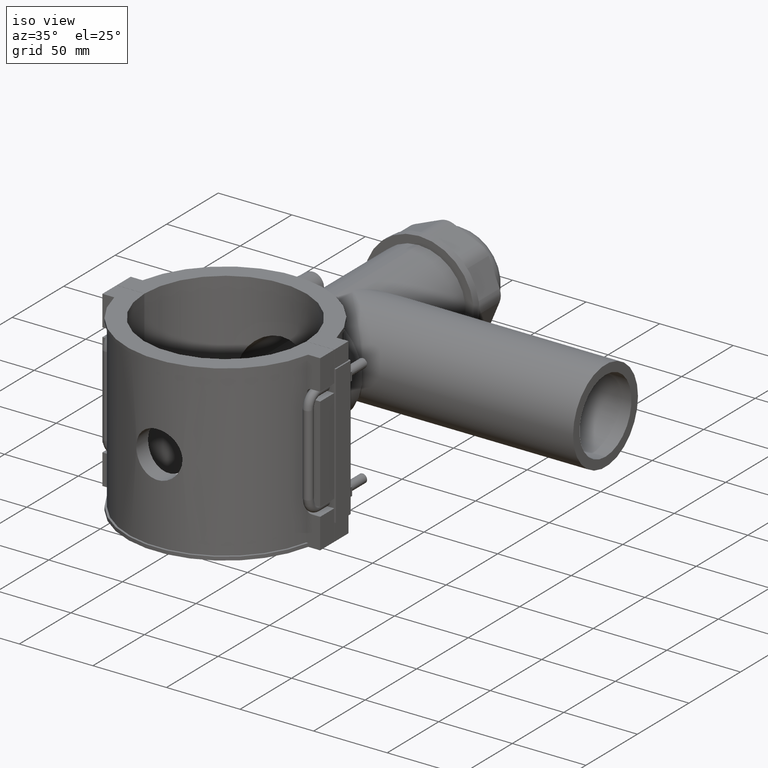
[diagram: clean part render]
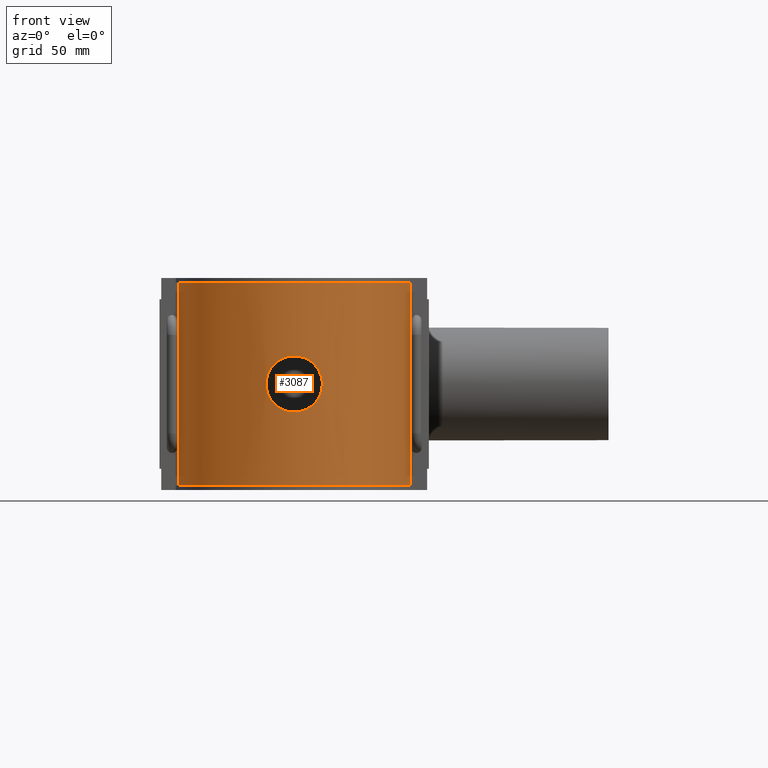
[diagram: tour spotlight — one face highlighted and labeled with its STEP entity id]
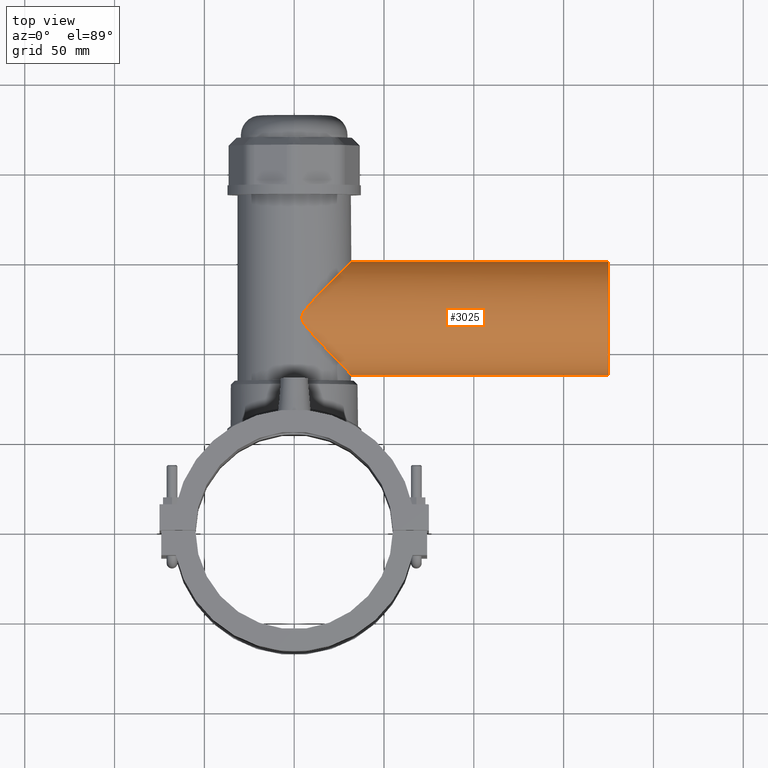
[diagram: tour spotlight — one face highlighted and labeled with its STEP entity id]
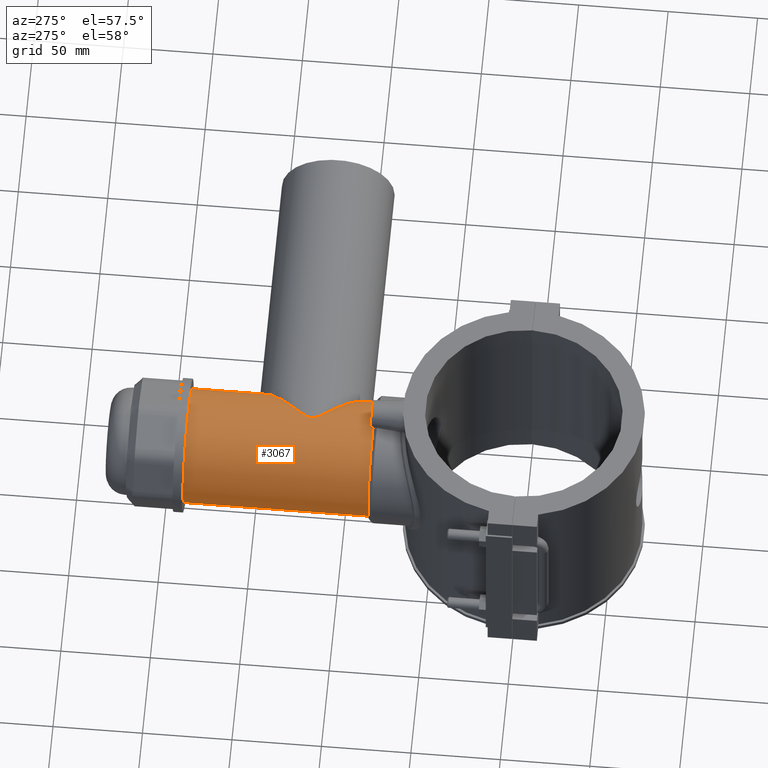
[diagram: tour spotlight — one face highlighted and labeled with its STEP entity id]
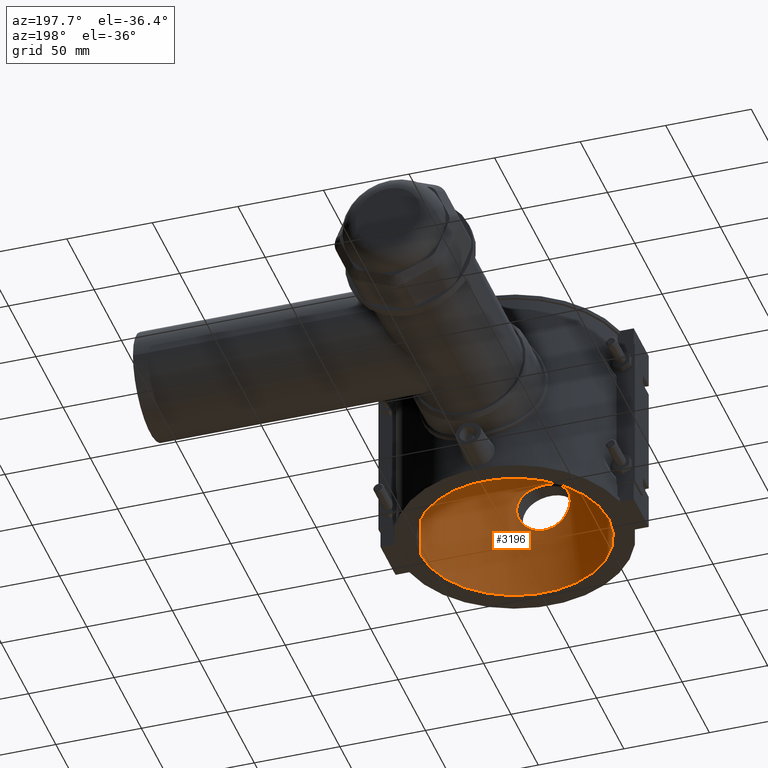
[diagram: tour spotlight — one face highlighted and labeled with its STEP entity id]
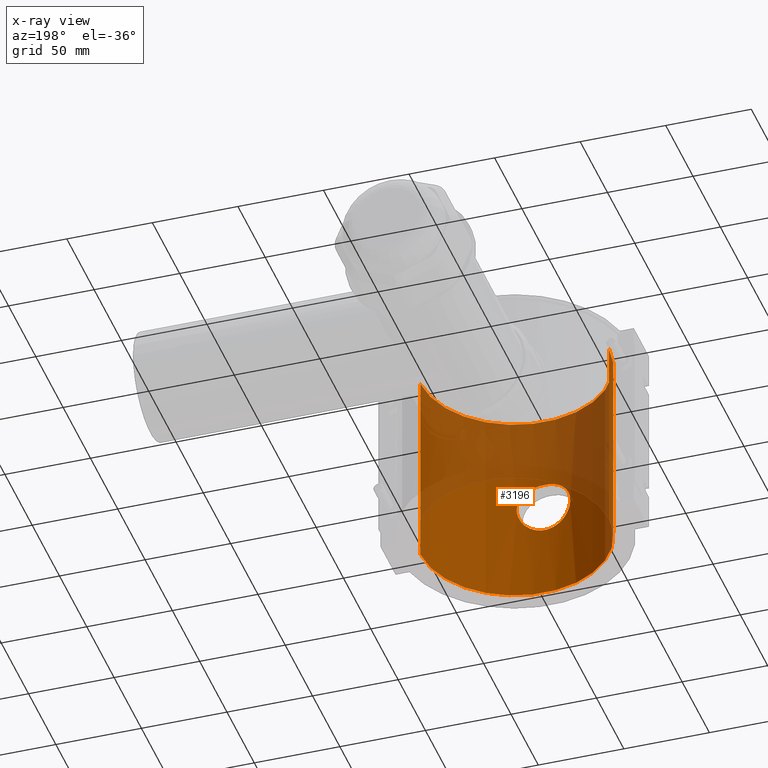
[diagram: x-ray of the same camera — body ghosted, this tour face saturated]
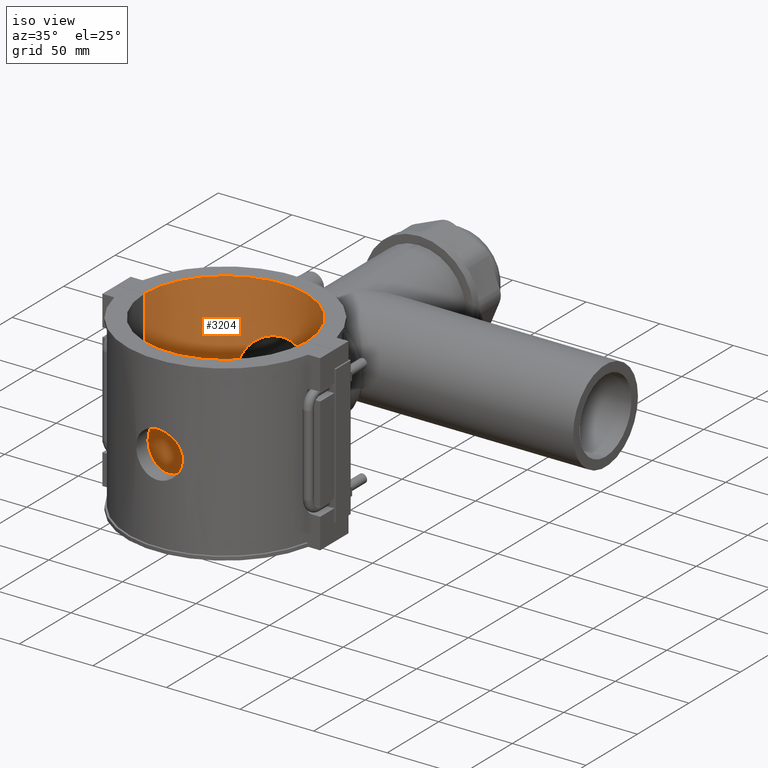
[diagram: tour spotlight — one face highlighted and labeled with its STEP entity id]
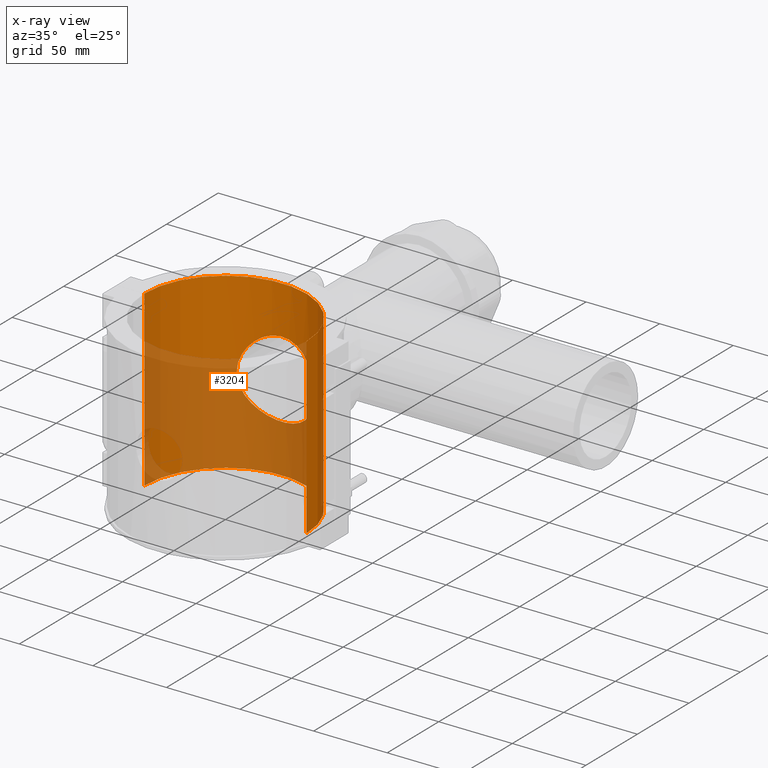
[diagram: x-ray of the same camera — body ghosted, this tour face saturated]
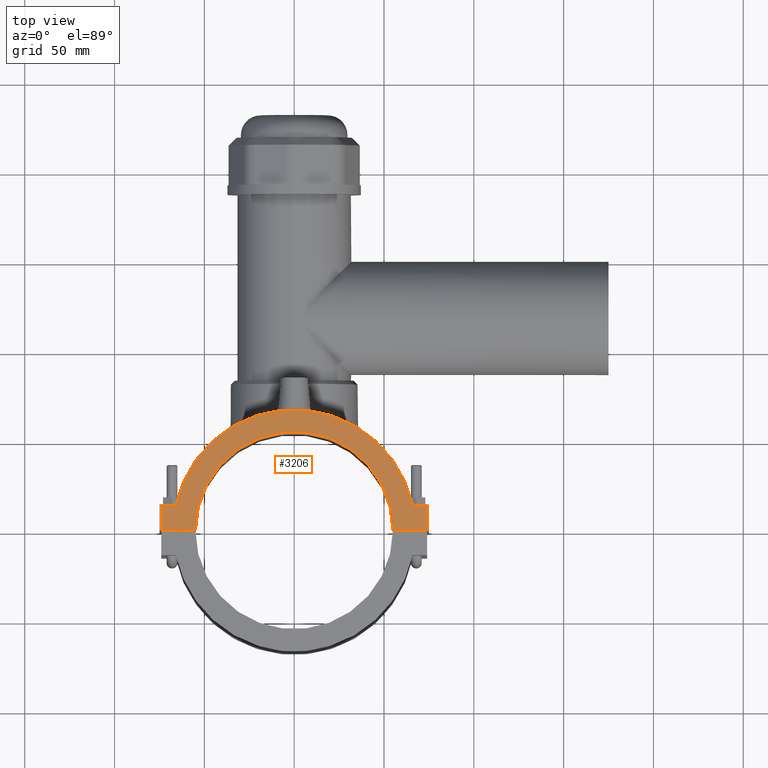
[diagram: tour spotlight — one face highlighted and labeled with its STEP entity id]
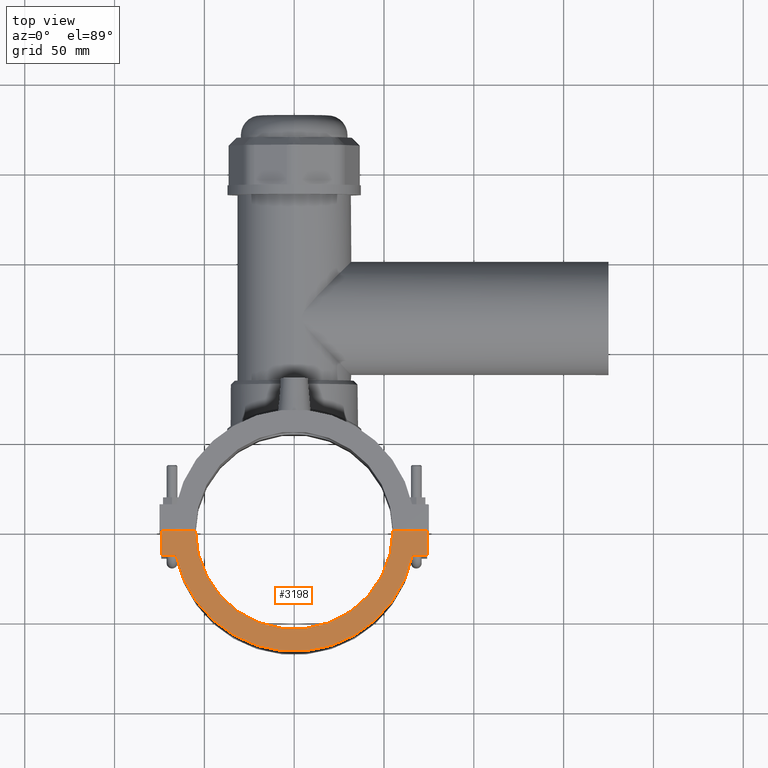
[diagram: tour spotlight — one face highlighted and labeled with its STEP entity id]
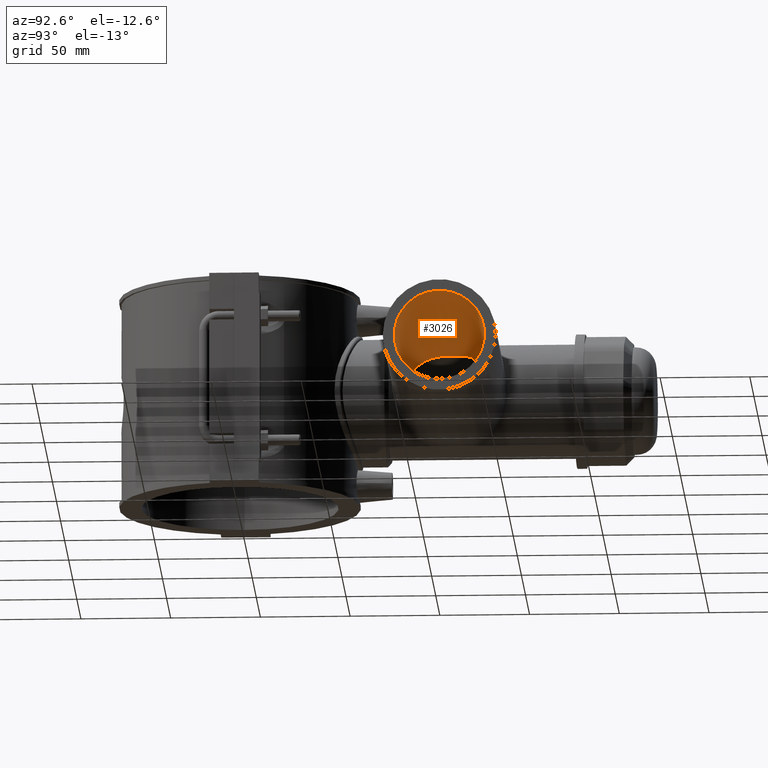
[diagram: tour spotlight — one face highlighted and labeled with its STEP entity id]
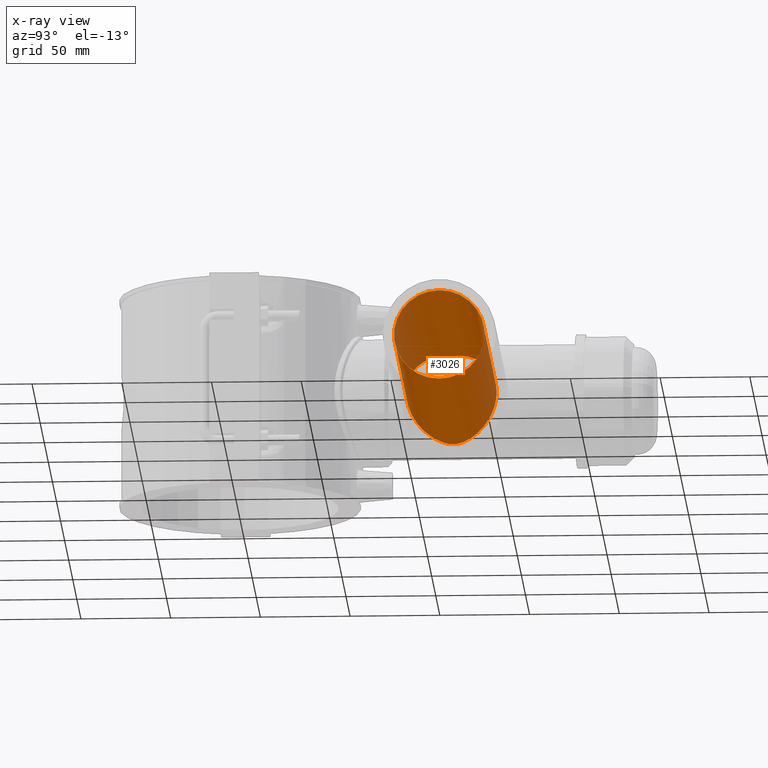
[diagram: x-ray of the same camera — body ghosted, this tour face saturated]
A machine part: a face-by-face anatomy tour. The part has 185 B-rep faces; the first image is the clean iso view, then the 8 largest visible faces are spotlighted one at a time (largest first), each with its STEP entity span.

Face 1 — front view, entity #3087. In plain terms, the highlighted cylindrical surface (partial cylindrical patch) has radius 66 mm, axis along (0, 0, 1).
Definition (entity closure, byte-faithful):
#108=LINE('',#5272,#387);
#143=LINE('',#5547,#422);
#387=VECTOR('',#3768,113.28);
#422=VECTOR('',#3845,113.28);
#620=FACE_BOUND('',#1026,.T.);
#661=B_SPLINE_CURVE_WITH_KNOTS('',3,(#4852,#4853,#4854,#4855,#4856,#4857,
#4858,#4859,#4860,#4861,#4862,#4863,#4864,#4865,#4866,#4867,#4868,#4869,
#4870,#4871,#4872,#4873,#4874,#4875,#4876,#4877,#4878,#4879,#4880,#4881,
#4882,#4883,#4884,#4885,#4886,#4887,#4888,#4889,#4890,#4891,#4892,#4893,
#4894,#4895,#4896,#4897,#4898,#4899,#4900,#4901,#4902,#4903,#4904,#4905,
#4906,#4907,#4908,#4909,#4910,#4911,#4912,#4913,#4914,#4915,#4916,#4917),
 .UNSPECIFIED.,.T.,.F.,(4,2,2,2,2,2,2,2,2,2,2,2,2,2,2,2,2,2,2,2,2,2,2,2,
2,2,2,2,2,2,2,2,4),(0.,0.296563875466227,0.593127750932455,0.889691626398682,
1.18625550186491,1.48278575986581,1.77931601786671,2.07584627586761,2.37237653386851,
2.66890679186941,2.9654370498703,3.2619673078712,3.5584975658721,3.85506144133833,
4.15162531680456,4.44818919227079,4.74475306773701,5.04131694320324,5.33788081866947,
5.63444469413569,5.93100856960192,6.22753882760282,6.52406908560372,6.82059934360462,
7.11712960160552,7.41365985960642,7.71019011760732,8.00672037560822,8.30325063360912,
8.59981450907534,8.89637838454157,9.1929422600078,9.48950613547403),
 .UNSPECIFIED.);
#727=CYLINDRICAL_SURFACE('',#3330,66.);
#818=FACE_OUTER_BOUND('',#1025,.T.);
#1025=EDGE_LOOP('',(#2320,#2321,#2322,#2323));
#1026=EDGE_LOOP('',(#2324));
#1224=CIRCLE('',#3306,66.);
#1232=CIRCLE('',#3320,66.);
#1355=VERTEX_POINT('',#4851);
#1370=VERTEX_POINT('',#5257);
#1371=VERTEX_POINT('',#5259);
#1375=VERTEX_POINT('',#5271);
#1396=VERTEX_POINT('',#5342);
#1682=EDGE_CURVE('',#1355,#1355,#661,.T.);
#1701=EDGE_CURVE('',#1370,#1371,#1224,.T.);
#1706=EDGE_CURVE('',#1370,#1375,#108,.T.);
#1730=EDGE_CURVE('',#1396,#1375,#1232,.T.);
#1765=EDGE_CURVE('',#1371,#1396,#143,.T.);
#2320=ORIENTED_EDGE('',*,*,#1701,.T.);
#2321=ORIENTED_EDGE('',*,*,#1765,.T.);
#2322=ORIENTED_EDGE('',*,*,#1730,.T.);
#2323=ORIENTED_EDGE('',*,*,#1706,.F.);
#2324=ORIENTED_EDGE('',*,*,#1682,.T.);
#3087=ADVANCED_FACE('',(#818,#620),#727,.T.);
#3306=AXIS2_PLACEMENT_3D('',#5261,#3758,#3759);
#3320=AXIS2_PLACEMENT_3D('',#5343,#3805,#3806);
#3330=AXIS2_PLACEMENT_3D('',#5548,#3846,#3847);
#3758=DIRECTION('center_axis',(0.,0.,1.));
#3759=DIRECTION('ref_axis',(1.,0.,0.));
#3768=DIRECTION('',(0.,0.,1.));
#3805=DIRECTION('center_axis',(0.,0.,-1.));
#3806=DIRECTION('ref_axis',(1.,0.,0.));
#3845=DIRECTION('',(0.,0.,1.));
#3846=DIRECTION('center_axis',(0.,0.,1.));
#3847=DIRECTION('ref_axis',(1.,0.,0.));
#4851=CARTESIAN_POINT('',(15.68,-64.1103548578543,0.));
#4852=CARTESIAN_POINT('Ctrl Pts',(15.68,-64.1103548578543,0.));
#4853=CARTESIAN_POINT('Ctrl Pts',(15.68,-64.1103548578543,-0.988546251554091));
#4854=CARTESIAN_POINT('Ctrl Pts',(15.5850087326511,-64.1338407291311,-2.00958776819716));
#4855=CARTESIAN_POINT('Ctrl Pts',(15.1863101186619,-64.2294170051241,-4.03818340396453));
#4856=CARTESIAN_POINT('Ctrl Pts',(14.8827021093981,-64.3014292133957,-5.04576072893045));
#4857=CARTESIAN_POINT('Ctrl Pts',(14.0814573062221,-64.4816343832848,-6.97618043489832));
#4858=CARTESIAN_POINT('Ctrl Pts',(13.5831837902416,-64.589790921803,-7.90063266366072));
#4859=CARTESIAN_POINT('Ctrl Pts',(12.4332077788121,-64.8209789921638,-9.60927795077908));
#4860=CARTESIAN_POINT('Ctrl Pts',(11.7814217784567,-64.9437734197019,-10.3934468795534));
#4861=CARTESIAN_POINT('Ctrl Pts',(10.3935255475941,-65.1802893476943,-11.781343110416));
#4862=CARTESIAN_POINT('Ctrl Pts',(9.60939328313264,-65.3023929186199,-12.4331202302505));
#4863=CARTESIAN_POINT('Ctrl Pts',(7.90072532773865,-65.5310727781705,-13.5831313489686));
#4864=CARTESIAN_POINT('Ctrl Pts',(6.97621381436831,-65.6374281654528,-14.0814451846236));
#4865=CARTESIAN_POINT('Ctrl Pts',(5.04567794343743,-65.8139853627539,-14.8827347375424));
#4866=CARTESIAN_POINT('Ctrl Pts',(4.03804552177073,-65.884179951295,-15.1863471795047));
#4867=CARTESIAN_POINT('Ctrl Pts',(2.0094346459336,-65.9772169153438,-15.5850288641697));
#4868=CARTESIAN_POINT('Ctrl Pts',(0.988434193336333,-66.,-15.68));
#4869=CARTESIAN_POINT('Ctrl Pts',(-0.988434193336329,-66.,-15.68));
#4870=CARTESIAN_POINT('Ctrl Pts',(-2.00943464593359,-65.9772169153438,-15.5850288641697));
#4871=CARTESIAN_POINT('Ctrl Pts',(-4.03804552177073,-65.884179951295,-15.1863471795047));
#4872=CARTESIAN_POINT('Ctrl Pts',(-5.04567794343743,-65.8139853627539,-14.8827347375424));
#4873=CARTESIAN_POINT('Ctrl Pts',(-6.97621381436831,-65.6374281654528,-14.0814451846236));
#4874=CARTESIAN_POINT('Ctrl Pts',(-7.90072532773865,-65.5310727781705,-13.5831313489686));
#4875=CARTESIAN_POINT('Ctrl Pts',(-9.60939328313264,-65.3023929186199,-12.4331202302505));
#4876=CARTESIAN_POINT('Ctrl Pts',(-10.3935255475941,-65.1802893476943,-11.781343110416));
#4877=CARTESIAN_POINT('Ctrl Pts',(-11.7814217784567,-64.9437734197019,-10.3934468795534));
#4878=CARTESIAN_POINT('Ctrl Pts',(-12.4332077788121,-64.8209789921638,-9.60927795077908));
#4879=CARTESIAN_POINT('Ctrl Pts',(-13.5831837902416,-64.589790921803,-7.90063266366072));
#4880=CARTESIAN_POINT('Ctrl Pts',(-14.0814573062221,-64.4816343832848,-6.97618043489832));
#4881=CARTESIAN_POINT('Ctrl Pts',(-14.8827021093981,-64.3014292133957,-5.04576072893044));
#4882=CARTESIAN_POINT('Ctrl Pts',(-15.1863101186619,-64.2294170051241,-4.03818340396453));
#4883=CARTESIAN_POINT('Ctrl Pts',(-15.5850087326511,-64.1338407291311,-2.00958776819716));
#4884=CARTESIAN_POINT('Ctrl Pts',(-15.68,-64.1103548578543,-0.988546251554092));
#4885=CARTESIAN_POINT('Ctrl Pts',(-15.68,-64.1103548578543,0.988546251554091));
#4886=CARTESIAN_POINT('Ctrl Pts',(-15.5850087326511,-64.1338407291311,2.00958776819716));
#4887=CARTESIAN_POINT('Ctrl Pts',(-15.1863101186619,-64.2294170051241,4.03818340396453));
#4888=CARTESIAN_POINT('Ctrl Pts',(-14.8827021093981,-64.3014292133957,5.04576072893045));
#4889=CARTESIAN_POINT('Ctrl Pts',(-14.0814573062221,-64.4816343832848,6.97618043489832));
#4890=CARTESIAN_POINT('Ctrl Pts',(-13.5831837902416,-64.589790921803,7.90063266366072));
#4891=CARTESIAN_POINT('Ctrl Pts',(-12.4332077788121,-64.8209789921638,9.60927795077908));
#4892=CARTESIAN_POINT('Ctrl Pts',(-11.7814217784567,-64.9437734197019,10.3934468795534));
#4893=CARTESIAN_POINT('Ctrl Pts',(-10.3935255475941,-65.1802893476943,11.781343110416));
#4894=CARTESIAN_POINT('Ctrl Pts',(-9.60939328313265,-65.3023929186199,12.4331202302505));
#4895=CARTESIAN_POINT('Ctrl Pts',(-7.90072532773866,-65.5310727781705,13.5831313489686));
#4896=CARTESIAN_POINT('Ctrl Pts',(-6.97621381436832,-65.6374281654528,14.0814451846236));
#4897=CARTESIAN_POINT('Ctrl Pts',(-5.04567794343744,-65.8139853627539,14.8827347375424));
#4898=CARTESIAN_POINT('Ctrl Pts',(-4.03804552177073,-65.884179951295,15.1863471795047));
#4899=CARTESIAN_POINT('Ctrl Pts',(-2.0094346459336,-65.9772169153438,15.5850288641697));
#4900=CARTESIAN_POINT('Ctrl Pts',(-0.988434193336334,-66.,15.68));
#4901=CARTESIAN_POINT('Ctrl Pts',(0.988434193336329,-66.,15.68));
#4902=CARTESIAN_POINT('Ctrl Pts',(2.00943464593359,-65.9772169153438,15.5850288641697));
#4903=CARTESIAN_POINT('Ctrl Pts',(4.03804552177073,-65.884179951295,15.1863471795047));
#4904=CARTESIAN_POINT('Ctrl Pts',(5.04567794343743,-65.8139853627539,14.8827347375424));
#4905=CARTESIAN_POINT('Ctrl Pts',(6.97621381436831,-65.6374281654528,14.0814451846236));
#4906=CARTESIAN_POINT('Ctrl Pts',(7.90072532773865,-65.5310727781705,13.5831313489686));
#4907=CARTESIAN_POINT('Ctrl Pts',(9.60939328313263,-65.3023929186199,12.4331202302505));
#4908=CARTESIAN_POINT('Ctrl Pts',(10.3935255475941,-65.1802893476943,11.781343110416));
#4909=CARTESIAN_POINT('Ctrl Pts',(11.7814217784567,-64.9437734197019,10.3934468795534));
#4910=CARTESIAN_POINT('Ctrl Pts',(12.4332077788121,-64.8209789921638,9.60927795077908));
#4911=CARTESIAN_POINT('Ctrl Pts',(13.5831837902416,-64.589790921803,7.90063266366072));
#4912=CARTESIAN_POINT('Ctrl Pts',(14.0814573062221,-64.4816343832848,6.97618043489832));
#4913=CARTESIAN_POINT('Ctrl Pts',(14.8827021093981,-64.3014292133957,5.04576072893045));
#4914=CARTESIAN_POINT('Ctrl Pts',(15.1863101186619,-64.2294170051241,4.03818340396454));
#4915=CARTESIAN_POINT('Ctrl Pts',(15.5850087326511,-64.1338407291311,2.00958776819717));
#4916=CARTESIAN_POINT('Ctrl Pts',(15.68,-64.1103548578543,0.988546251554095));
#4917=CARTESIAN_POINT('Ctrl Pts',(15.68,-64.1103548578543,2.77555756156289E-16));
#5257=CARTESIAN_POINT('',(-64.5518202686803,-13.75,-56.64));
#5259=CARTESIAN_POINT('',(64.5518202686803,-13.75,-56.64));
#5261=CARTESIAN_POINT('Origin',(0.,0.,-56.64));
#5271=CARTESIAN_POINT('',(-64.5518202686803,-13.75,56.64));
#5272=CARTESIAN_POINT('',(-64.5518202686803,-13.75,0.));
#5342=CARTESIAN_POINT('',(64.5518202686803,-13.75,56.64));
#5343=CARTESIAN_POINT('Origin',(0.,0.,56.64));
#5547=CARTESIAN_POINT('',(64.5518202686803,-13.75,0.));
#5548=CARTESIAN_POINT('Origin',(0.,0.,0.));

Face 2 — top view, entity #3025. In plain terms, the highlighted cylindrical surface (bore or boss wall) has radius 31.5 mm, axis along (1, 0, 0).
Definition (entity closure, byte-faithful):
#601=FACE_BOUND('',#945,.T.);
#660=B_SPLINE_CURVE_WITH_KNOTS('',3,(#4578,#4579,#4580,#4581,#4582,#4583,
#4584,#4585,#4586,#4587,#4588,#4589,#4590,#4591,#4592,#4593,#4594,#4595,
#4596,#4597,#4598,#4599,#4600,#4601,#4602,#4603,#4604,#4605,#4606,#4607,
#4608,#4609,#4610,#4611,#4612,#4613,#4614,#4615,#4616,#4617,#4618,#4619,
#4620,#4621,#4622,#4623,#4624,#4625,#4626,#4627,#4628,#4629,#4630,#4631,
#4632,#4633,#4634,#4635,#4636,#4637,#4638,#4639,#4640,#4641,#4642,#4643,
#4644,#4645,#4646,#4647,#4648,#4649,#4650,#4651,#4652,#4653,#4654,#4655,
#4656,#4657,#4658,#4659),.UNSPECIFIED.,.T.,.F.,(4,2,2,2,2,2,2,2,2,2,2,2,
2,2,2,2,2,2,2,2,2,2,2,2,2,2,2,2,2,2,2,2,2,2,2,2,2,2,2,2,4),(0.,0.207613595599476,
0.415227191198952,0.830454382397904,1.66090876479581,2.49136314719371,3.32181752959162,
3.9721409450565,4.62246436052138,5.27278777598626,5.92311119145114,6.57343460691602,
7.2237580223809,7.87408143784578,8.52440485331066,9.35485923570856,10.1853136181065,
11.0157680005044,11.4309951917033,11.6386087873028,11.8462223829023,12.0538359785017,
12.2614495741012,12.6766767653002,13.507131147698,14.3375855300959,15.1680399124938,
15.8183633279587,16.4686867434236,17.1190101588885,17.7693335743534,18.4196569898183,
19.0699804052831,19.720303820748,20.3706272362129,21.2010816186108,22.0315360010087,
22.8619903834066,23.2772175746056,23.484831170205,23.6924447658045),
 .UNSPECIFIED.);
#706=CYLINDRICAL_SURFACE('',#3214,31.5);
#756=FACE_OUTER_BOUND('',#944,.T.);
#944=EDGE_LOOP('',(#2027));
#945=EDGE_LOOP('',(#2028));
#1184=CIRCLE('',#3215,31.5);
#1296=VERTEX_POINT('',#4575);
#1297=VERTEX_POINT('',#4577);
#1591=EDGE_CURVE('',#1296,#1296,#1184,.T.);
#1592=EDGE_CURVE('',#1297,#1297,#660,.T.);
#2027=ORIENTED_EDGE('',*,*,#1591,.F.);
#2028=ORIENTED_EDGE('',*,*,#1592,.F.);
#3025=ADVANCED_FACE('',(#756,#601),#706,.T.);
#3214=AXIS2_PLACEMENT_3D('',#4574,#3510,#3511);
#3215=AXIS2_PLACEMENT_3D('',#4576,#3512,#3513);
#3510=DIRECTION('center_axis',(1.,0.,0.));
#3511=DIRECTION('ref_axis',(0.,1.,0.));
#3512=DIRECTION('center_axis',(1.,0.,0.));
#3513=DIRECTION('ref_axis',(0.,0.,-1.));
#4574=CARTESIAN_POINT('Origin',(87.5,119.,0.));
#4575=CARTESIAN_POINT('',(175.,150.5,0.));
#4576=CARTESIAN_POINT('Origin',(175.,119.,0.));
#4577=CARTESIAN_POINT('',(4.28416853076504,119.,-31.5));
#4578=CARTESIAN_POINT('Ctrl Pts',(4.28416853076504,119.,-31.5));
#4579=CARTESIAN_POINT('Ctrl Pts',(4.28416853076504,118.307954681335,-31.5));
#4580=CARTESIAN_POINT('Ctrl Pts',(4.44188303727298,117.72758267633,-31.4788492083328));
#4581=CARTESIAN_POINT('Ctrl Pts',(4.85764514113743,116.657887708663,-31.417376240122));
#4582=CARTESIAN_POINT('Ctrl Pts',(5.12051913006217,116.170491422762,-31.3762825799122));
#4583=CARTESIAN_POINT('Ctrl Pts',(5.98947383763123,114.747275564427,-31.2261950989116));
#4584=CARTESIAN_POINT('Ctrl Pts',(6.66839920576299,113.863247776441,-31.0919560835202));
#4585=CARTESIAN_POINT('Ctrl Pts',(8.87718963573995,111.155161118765,-30.5629240864724));
#4586=CARTESIAN_POINT('Ctrl Pts',(10.5475539041236,109.339876741894,-30.0488889512324));
#4587=CARTESIAN_POINT('Ctrl Pts',(14.0385737811969,105.615356508171,-28.5850493903214));
#4588=CARTESIAN_POINT('Ctrl Pts',(15.8522324019782,103.731235562136,-27.6371473040436));
#4589=CARTESIAN_POINT('Ctrl Pts',(19.3841469699869,100.090027901165,-25.2855696401473));
#4590=CARTESIAN_POINT('Ctrl Pts',(21.1032728542864,98.3339349196824,-23.8816621344349));
#4591=CARTESIAN_POINT('Ctrl Pts',(23.9185258346315,95.4670798427901,-21.0148070575426));
#4592=CARTESIAN_POINT('Ctrl Pts',(25.1352613732307,94.2318543870884,-19.5626666934868));
#4593=CARTESIAN_POINT('Ctrl Pts',(27.3567601613647,91.9801554531416,-16.312172333491));
#4594=CARTESIAN_POINT('Ctrl Pts',(28.3612922973331,90.963880632088,-14.5135227856961));
#4595=CARTESIAN_POINT('Ctrl Pts',(30.0225961120883,89.2843918976124,-10.6606301135872));
#4596=CARTESIAN_POINT('Ctrl Pts',(30.6809824555067,88.6195398855144,-8.60143217834863));
#4597=CARTESIAN_POINT('Ctrl Pts',(31.5648653661845,87.727161978529,-4.35506537920379));
#4598=CARTESIAN_POINT('Ctrl Pts',(31.79,87.5,-2.1677447182163));
#4599=CARTESIAN_POINT('Ctrl Pts',(31.79,87.5,2.16774471821623));
#4600=CARTESIAN_POINT('Ctrl Pts',(31.5648653661845,87.727161978529,4.35506537920371));
#4601=CARTESIAN_POINT('Ctrl Pts',(30.6809824555067,88.6195398855144,8.60143217834854));
#4602=CARTESIAN_POINT('Ctrl Pts',(30.0225961120883,89.2843918976123,10.6606301135871));
#4603=CARTESIAN_POINT('Ctrl Pts',(28.3612922973331,90.9638806320879,14.5135227856961));
#4604=CARTESIAN_POINT('Ctrl Pts',(27.3567601613648,91.9801554531416,16.3121723334909));
#4605=CARTESIAN_POINT('Ctrl Pts',(25.1352613732307,94.2318543870883,19.5626666934868));
#4606=CARTESIAN_POINT('Ctrl Pts',(23.9185258346316,95.46707984279,21.0148070575425));
#4607=CARTESIAN_POINT('Ctrl Pts',(21.1032728542865,98.3339349196823,23.8816621344348));
#4608=CARTESIAN_POINT('Ctrl Pts',(19.384146969987,100.090027901165,25.2855696401472));
#4609=CARTESIAN_POINT('Ctrl Pts',(15.8522324019784,103.731235562136,27.6371473040435));
#4610=CARTESIAN_POINT('Ctrl Pts',(14.0385737811971,105.615356508171,28.5850493903213));
#4611=CARTESIAN_POINT('Ctrl Pts',(10.5475539041238,109.339876741894,30.0488889512324));
#4612=CARTESIAN_POINT('Ctrl Pts',(8.87718963574019,111.155161118765,30.5629240864723));
#4613=CARTESIAN_POINT('Ctrl Pts',(6.66839920576327,113.863247776441,31.0919560835202));
#4614=CARTESIAN_POINT('Ctrl Pts',(5.98947383763149,114.747275564427,31.2261950989115));
#4615=CARTESIAN_POINT('Ctrl Pts',(5.12051913006244,116.170491422762,31.3762825799122));
#4616=CARTESIAN_POINT('Ctrl Pts',(4.85764514113768,116.657887708663,31.417376240122));
#4617=CARTESIAN_POINT('Ctrl Pts',(4.44188303727323,117.72758267633,31.4788492083328));
#4618=CARTESIAN_POINT('Ctrl Pts',(4.28416853076534,118.307954681335,31.5));
#4619=CARTESIAN_POINT('Ctrl Pts',(4.28416853076533,119.692045318665,31.5));
#4620=CARTESIAN_POINT('Ctrl Pts',(4.44188303727324,120.27241732367,31.4788492083328));
#4621=CARTESIAN_POINT('Ctrl Pts',(4.85764514113767,121.342112291337,31.417376240122));
#4622=CARTESIAN_POINT('Ctrl Pts',(5.12051913006245,121.829508577238,31.3762825799122));
#4623=CARTESIAN_POINT('Ctrl Pts',(5.98947383763147,123.252724435573,31.2261950989116));
#4624=CARTESIAN_POINT('Ctrl Pts',(6.66839920576324,124.136752223559,31.0919560835202));
#4625=CARTESIAN_POINT('Ctrl Pts',(8.87718963574015,126.844838881235,30.5629240864723));
#4626=CARTESIAN_POINT('Ctrl Pts',(10.5475539041237,128.660123258106,30.0488889512324));
#4627=CARTESIAN_POINT('Ctrl Pts',(14.038573781197,132.384643491829,28.5850493903214));
#4628=CARTESIAN_POINT('Ctrl Pts',(15.8522324019783,134.268764437864,27.6371473040436));
#4629=CARTESIAN_POINT('Ctrl Pts',(19.3841469699869,137.909972098835,25.2855696401473));
#4630=CARTESIAN_POINT('Ctrl Pts',(21.1032728542865,139.666065080318,23.8816621344349));
#4631=CARTESIAN_POINT('Ctrl Pts',(23.9185258346315,142.53292015721,21.0148070575426));
#4632=CARTESIAN_POINT('Ctrl Pts',(25.1352613732307,143.768145612912,19.5626666934868));
#4633=CARTESIAN_POINT('Ctrl Pts',(27.3567601613648,146.019844546858,16.312172333491));
#4634=CARTESIAN_POINT('Ctrl Pts',(28.3612922973331,147.036119367912,14.5135227856961));
#4635=CARTESIAN_POINT('Ctrl Pts',(30.0225961120883,148.715608102388,10.6606301135872));
#4636=CARTESIAN_POINT('Ctrl Pts',(30.6809824555067,149.380460114486,8.60143217834862));
#4637=CARTESIAN_POINT('Ctrl Pts',(31.5648653661845,150.272838021471,4.35506537920377));
#4638=CARTESIAN_POINT('Ctrl Pts',(31.79,150.5,2.16774471821628));
#4639=CARTESIAN_POINT('Ctrl Pts',(31.79,150.5,-2.16774471821627));
#4640=CARTESIAN_POINT('Ctrl Pts',(31.5648653661845,150.272838021471,-4.35506537920376));
#4641=CARTESIAN_POINT('Ctrl Pts',(30.6809824555067,149.380460114486,-8.6014321783486));
#4642=CARTESIAN_POINT('Ctrl Pts',(30.0225961120883,148.715608102388,-10.6606301135871));
#4643=CARTESIAN_POINT('Ctrl Pts',(28.3612922973331,147.036119367912,-14.5135227856961));
#4644=CARTESIAN_POINT('Ctrl Pts',(27.3567601613647,146.019844546858,-16.312172333491));
#4645=CARTESIAN_POINT('Ctrl Pts',(25.1352613732307,143.768145612912,-19.5626666934868));
#4646=CARTESIAN_POINT('Ctrl Pts',(23.9185258346315,142.53292015721,-21.0148070575426));
#4647=CARTESIAN_POINT('Ctrl Pts',(21.1032728542864,139.666065080318,-23.8816621344349));
#4648=CARTESIAN_POINT('Ctrl Pts',(19.3841469699869,137.909972098835,-25.2855696401473));
#4649=CARTESIAN_POINT('Ctrl Pts',(15.8522324019782,134.268764437864,-27.6371473040436));
#4650=CARTESIAN_POINT('Ctrl Pts',(14.0385737811969,132.384643491829,-28.5850493903214));
#4651=CARTESIAN_POINT('Ctrl Pts',(10.5475539041236,128.660123258106,-30.0488889512324));
#4652=CARTESIAN_POINT('Ctrl Pts',(8.87718963573995,126.844838881235,-30.5629240864724));
#4653=CARTESIAN_POINT('Ctrl Pts',(6.668399205763,124.136752223559,-31.0919560835202));
#4654=CARTESIAN_POINT('Ctrl Pts',(5.98947383763126,123.252724435573,-31.2261950989116));
#4655=CARTESIAN_POINT('Ctrl Pts',(5.1205191300622,121.829508577238,-31.3762825799122));
#4656=CARTESIAN_POINT('Ctrl Pts',(4.85764514113744,121.342112291337,-31.417376240122));
#4657=CARTESIAN_POINT('Ctrl Pts',(4.44188303727297,120.27241732367,-31.4788492083328));
#4658=CARTESIAN_POINT('Ctrl Pts',(4.28416853076505,119.692045318665,-31.5));
#4659=CARTESIAN_POINT('Ctrl Pts',(4.28416853076505,119.,-31.5));

Face 3 — auxiliary view, entity #3067. In plain terms, the highlighted cylindrical surface (bore or boss wall) has radius 31.79 mm, axis along (0, 1, 0).
Definition (entity closure, byte-faithful):
#610=FACE_BOUND('',#996,.T.);
#611=FACE_BOUND('',#997,.T.);
#660=B_SPLINE_CURVE_WITH_KNOTS('',3,(#4578,#4579,#4580,#4581,#4582,#4583,
#4584,#4585,#4586,#4587,#4588,#4589,#4590,#4591,#4592,#4593,#4594,#4595,
#4596,#4597,#4598,#4599,#4600,#4601,#4602,#4603,#4604,#4605,#4606,#4607,
#4608,#4609,#4610,#4611,#4612,#4613,#4614,#4615,#4616,#4617,#4618,#4619,
#4620,#4621,#4622,#4623,#4624,#4625,#4626,#4627,#4628,#4629,#4630,#4631,
#4632,#4633,#4634,#4635,#4636,#4637,#4638,#4639,#4640,#4641,#4642,#4643,
#4644,#4645,#4646,#4647,#4648,#4649,#4650,#4651,#4652,#4653,#4654,#4655,
#4656,#4657,#4658,#4659),.UNSPECIFIED.,.T.,.F.,(4,2,2,2,2,2,2,2,2,2,2,2,
2,2,2,2,2,2,2,2,2,2,2,2,2,2,2,2,2,2,2,2,2,2,2,2,2,2,2,2,4),(0.,0.207613595599476,
0.415227191198952,0.830454382397904,1.66090876479581,2.49136314719371,3.32181752959162,
3.9721409450565,4.62246436052138,5.27278777598626,5.92311119145114,6.57343460691602,
7.2237580223809,7.87408143784578,8.52440485331066,9.35485923570856,10.1853136181065,
11.0157680005044,11.4309951917033,11.6386087873028,11.8462223829023,12.0538359785017,
12.2614495741012,12.6766767653002,13.507131147698,14.3375855300959,15.1680399124938,
15.8183633279587,16.4686867434236,17.1190101588885,17.7693335743534,18.4196569898183,
19.0699804052831,19.720303820748,20.3706272362129,21.2010816186108,22.0315360010087,
22.8619903834066,23.2772175746056,23.484831170205,23.6924447658045),
 .UNSPECIFIED.);
#717=CYLINDRICAL_SURFACE('',#3288,31.79);
#798=FACE_OUTER_BOUND('',#995,.T.);
#995=EDGE_LOOP('',(#2204));
#996=EDGE_LOOP('',(#2205));
#997=EDGE_LOOP('',(#2206));
#1208=CIRCLE('',#3268,31.79);
#1216=CIRCLE('',#3289,31.79);
#1297=VERTEX_POINT('',#4577);
#1342=VERTEX_POINT('',#4801);
#1353=VERTEX_POINT('',#4844);
#1592=EDGE_CURVE('',#1297,#1297,#660,.T.);
#1661=EDGE_CURVE('',#1342,#1342,#1208,.T.);
#1680=EDGE_CURVE('',#1353,#1353,#1216,.T.);
#2204=ORIENTED_EDGE('',*,*,#1661,.T.);
#2205=ORIENTED_EDGE('',*,*,#1592,.T.);
#2206=ORIENTED_EDGE('',*,*,#1680,.F.);
#3067=ADVANCED_FACE('',(#798,#610,#611),#717,.T.);
#3268=AXIS2_PLACEMENT_3D('',#4802,#3663,#3664);
#3288=AXIS2_PLACEMENT_3D('',#4843,#3714,#3715);
#3289=AXIS2_PLACEMENT_3D('',#4845,#3716,#3717);
#3663=DIRECTION('center_axis',(0.,1.,3.06161699786838E-16));
#3664=DIRECTION('ref_axis',(1.,0.,0.));
#3714=DIRECTION('center_axis',(0.,1.,3.06161699786838E-16));
#3715=DIRECTION('ref_axis',(0.,0.,1.));
#3716=DIRECTION('center_axis',(0.,1.,3.06161699786838E-16));
#3717=DIRECTION('ref_axis',(1.,0.,0.));
#4577=CARTESIAN_POINT('',(4.28416853076504,119.,-31.5));
#4578=CARTESIAN_POINT('Ctrl Pts',(4.28416853076504,119.,-31.5));
#4579=CARTESIAN_POINT('Ctrl Pts',(4.28416853076504,118.307954681335,-31.5));
#4580=CARTESIAN_POINT('Ctrl Pts',(4.44188303727298,117.72758267633,-31.4788492083328));
#4581=CARTESIAN_POINT('Ctrl Pts',(4.85764514113743,116.657887708663,-31.417376240122));
#4582=CARTESIAN_POINT('Ctrl Pts',(5.12051913006217,116.170491422762,-31.3762825799122));
#4583=CARTESIAN_POINT('Ctrl Pts',(5.98947383763123,114.747275564427,-31.2261950989116));
#4584=CARTESIAN_POINT('Ctrl Pts',(6.66839920576299,113.863247776441,-31.0919560835202));
#4585=CARTESIAN_POINT('Ctrl Pts',(8.87718963573995,111.155161118765,-30.5629240864724));
#4586=CARTESIAN_POINT('Ctrl Pts',(10.5475539041236,109.339876741894,-30.0488889512324));
#4587=CARTESIAN_POINT('Ctrl Pts',(14.0385737811969,105.615356508171,-28.5850493903214));
#4588=CARTESIAN_POINT('Ctrl Pts',(15.8522324019782,103.731235562136,-27.6371473040436));
#4589=CARTESIAN_POINT('Ctrl Pts',(19.3841469699869,100.090027901165,-25.2855696401473));
#4590=CARTESIAN_POINT('Ctrl Pts',(21.1032728542864,98.3339349196824,-23.8816621344349));
#4591=CARTESIAN_POINT('Ctrl Pts',(23.9185258346315,95.4670798427901,-21.0148070575426));
#4592=CARTESIAN_POINT('Ctrl Pts',(25.1352613732307,94.2318543870884,-19.5626666934868));
#4593=CARTESIAN_POINT('Ctrl Pts',(27.3567601613647,91.9801554531416,-16.312172333491));
#4594=CARTESIAN_POINT('Ctrl Pts',(28.3612922973331,90.963880632088,-14.5135227856961));
#4595=CARTESIAN_POINT('Ctrl Pts',(30.0225961120883,89.2843918976124,-10.6606301135872));
#4596=CARTESIAN_POINT('Ctrl Pts',(30.6809824555067,88.6195398855144,-8.60143217834863));
#4597=CARTESIAN_POINT('Ctrl Pts',(31.5648653661845,87.727161978529,-4.35506537920379));
#4598=CARTESIAN_POINT('Ctrl Pts',(31.79,87.5,-2.1677447182163));
#4599=CARTESIAN_POINT('Ctrl Pts',(31.79,87.5,2.16774471821623));
#4600=CARTESIAN_POINT('Ctrl Pts',(31.5648653661845,87.727161978529,4.35506537920371));
#4601=CARTESIAN_POINT('Ctrl Pts',(30.6809824555067,88.6195398855144,8.60143217834854));
#4602=CARTESIAN_POINT('Ctrl Pts',(30.0225961120883,89.2843918976123,10.6606301135871));
#4603=CARTESIAN_POINT('Ctrl Pts',(28.3612922973331,90.9638806320879,14.5135227856961));
#4604=CARTESIAN_POINT('Ctrl Pts',(27.3567601613648,91.9801554531416,16.3121723334909));
#4605=CARTESIAN_POINT('Ctrl Pts',(25.1352613732307,94.2318543870883,19.5626666934868));
#4606=CARTESIAN_POINT('Ctrl Pts',(23.9185258346316,95.46707984279,21.0148070575425));
#4607=CARTESIAN_POINT('Ctrl Pts',(21.1032728542865,98.3339349196823,23.8816621344348));
#4608=CARTESIAN_POINT('Ctrl Pts',(19.384146969987,100.090027901165,25.2855696401472));
#4609=CARTESIAN_POINT('Ctrl Pts',(15.8522324019784,103.731235562136,27.6371473040435));
#4610=CARTESIAN_POINT('Ctrl Pts',(14.0385737811971,105.615356508171,28.5850493903213));
#4611=CARTESIAN_POINT('Ctrl Pts',(10.5475539041238,109.339876741894,30.0488889512324));
#4612=CARTESIAN_POINT('Ctrl Pts',(8.87718963574019,111.155161118765,30.5629240864723));
#4613=CARTESIAN_POINT('Ctrl Pts',(6.66839920576327,113.863247776441,31.0919560835202));
#4614=CARTESIAN_POINT('Ctrl Pts',(5.98947383763149,114.747275564427,31.2261950989115));
#4615=CARTESIAN_POINT('Ctrl Pts',(5.12051913006244,116.170491422762,31.3762825799122));
#4616=CARTESIAN_POINT('Ctrl Pts',(4.85764514113768,116.657887708663,31.417376240122));
#4617=CARTESIAN_POINT('Ctrl Pts',(4.44188303727323,117.72758267633,31.4788492083328));
#4618=CARTESIAN_POINT('Ctrl Pts',(4.28416853076534,118.307954681335,31.5));
#4619=CARTESIAN_POINT('Ctrl Pts',(4.28416853076533,119.692045318665,31.5));
#4620=CARTESIAN_POINT('Ctrl Pts',(4.44188303727324,120.27241732367,31.4788492083328));
#4621=CARTESIAN_POINT('Ctrl Pts',(4.85764514113767,121.342112291337,31.417376240122));
#4622=CARTESIAN_POINT('Ctrl Pts',(5.12051913006245,121.829508577238,31.3762825799122));
#4623=CARTESIAN_POINT('Ctrl Pts',(5.98947383763147,123.252724435573,31.2261950989116));
#4624=CARTESIAN_POINT('Ctrl Pts',(6.66839920576324,124.136752223559,31.0919560835202));
#4625=CARTESIAN_POINT('Ctrl Pts',(8.87718963574015,126.844838881235,30.5629240864723));
#4626=CARTESIAN_POINT('Ctrl Pts',(10.5475539041237,128.660123258106,30.0488889512324));
#4627=CARTESIAN_POINT('Ctrl Pts',(14.038573781197,132.384643491829,28.5850493903214));
#4628=CARTESIAN_POINT('Ctrl Pts',(15.8522324019783,134.268764437864,27.6371473040436));
#4629=CARTESIAN_POINT('Ctrl Pts',(19.3841469699869,137.909972098835,25.2855696401473));
#4630=CARTESIAN_POINT('Ctrl Pts',(21.1032728542865,139.666065080318,23.8816621344349));
#4631=CARTESIAN_POINT('Ctrl Pts',(23.9185258346315,142.53292015721,21.0148070575426));
#4632=CARTESIAN_POINT('Ctrl Pts',(25.1352613732307,143.768145612912,19.5626666934868));
#4633=CARTESIAN_POINT('Ctrl Pts',(27.3567601613648,146.019844546858,16.312172333491));
#4634=CARTESIAN_POINT('Ctrl Pts',(28.3612922973331,147.036119367912,14.5135227856961));
#4635=CARTESIAN_POINT('Ctrl Pts',(30.0225961120883,148.715608102388,10.6606301135872));
#4636=CARTESIAN_POINT('Ctrl Pts',(30.6809824555067,149.380460114486,8.60143217834862));
#4637=CARTESIAN_POINT('Ctrl Pts',(31.5648653661845,150.272838021471,4.35506537920377));
#4638=CARTESIAN_POINT('Ctrl Pts',(31.79,150.5,2.16774471821628));
#4639=CARTESIAN_POINT('Ctrl Pts',(31.79,150.5,-2.16774471821627));
#4640=CARTESIAN_POINT('Ctrl Pts',(31.5648653661845,150.272838021471,-4.35506537920376));
#4641=CARTESIAN_POINT('Ctrl Pts',(30.6809824555067,149.380460114486,-8.6014321783486));
#4642=CARTESIAN_POINT('Ctrl Pts',(30.0225961120883,148.715608102388,-10.6606301135871));
#4643=CARTESIAN_POINT('Ctrl Pts',(28.3612922973331,147.036119367912,-14.5135227856961));
#4644=CARTESIAN_POINT('Ctrl Pts',(27.3567601613647,146.019844546858,-16.312172333491));
#4645=CARTESIAN_POINT('Ctrl Pts',(25.1352613732307,143.768145612912,-19.5626666934868));
#4646=CARTESIAN_POINT('Ctrl Pts',(23.9185258346315,142.53292015721,-21.0148070575426));
#4647=CARTESIAN_POINT('Ctrl Pts',(21.1032728542864,139.666065080318,-23.8816621344349));
#4648=CARTESIAN_POINT('Ctrl Pts',(19.3841469699869,137.909972098835,-25.2855696401473));
#4649=CARTESIAN_POINT('Ctrl Pts',(15.8522324019782,134.268764437864,-27.6371473040436));
#4650=CARTESIAN_POINT('Ctrl Pts',(14.0385737811969,132.384643491829,-28.5850493903214));
#4651=CARTESIAN_POINT('Ctrl Pts',(10.5475539041236,128.660123258106,-30.0488889512324));
#4652=CARTESIAN_POINT('Ctrl Pts',(8.87718963573995,126.844838881235,-30.5629240864724));
#4653=CARTESIAN_POINT('Ctrl Pts',(6.668399205763,124.136752223559,-31.0919560835202));
#4654=CARTESIAN_POINT('Ctrl Pts',(5.98947383763126,123.252724435573,-31.2261950989116));
#4655=CARTESIAN_POINT('Ctrl Pts',(5.1205191300622,121.829508577238,-31.3762825799122));
#4656=CARTESIAN_POINT('Ctrl Pts',(4.85764514113744,121.342112291337,-31.417376240122));
#4657=CARTESIAN_POINT('Ctrl Pts',(4.44188303727297,120.27241732367,-31.4788492083328));
#4658=CARTESIAN_POINT('Ctrl Pts',(4.28416853076505,119.692045318665,-31.5));
#4659=CARTESIAN_POINT('Ctrl Pts',(4.28416853076505,119.,-31.5));
#4801=CARTESIAN_POINT('',(0.,84.25,31.79));
#4802=CARTESIAN_POINT('Origin',(0.,84.25,8.95522971876503E-15));
#4843=CARTESIAN_POINT('Origin',(0.,136.,2.47990976827339E-14));
#4844=CARTESIAN_POINT('',(0.,187.75,31.79));
#4845=CARTESIAN_POINT('Origin',(0.,187.75,4.06429656467028E-14));

Face 4 — auxiliary view, entity #3196. An x-ray twin of the same camera follows (body ghosted, this face saturated) — the face is partly hidden behind the body. In plain terms, the highlighted cylindrical surface (partial cylindrical patch) has radius 55 mm, axis along (0, 0, 1).
Definition (entity closure, byte-faithful):
#304=LINE('',#6517,#583);
#310=LINE('',#6531,#589);
#583=VECTOR('',#4306,118.);
#589=VECTOR('',#4322,118.);
#653=FACE_BOUND('',#1168,.T.);
#662=B_SPLINE_CURVE_WITH_KNOTS('',3,(#4919,#4920,#4921,#4922,#4923,#4924,
#4925,#4926,#4927,#4928,#4929,#4930,#4931,#4932,#4933,#4934,#4935,#4936,
#4937,#4938,#4939,#4940,#4941,#4942,#4943,#4944,#4945,#4946,#4947,#4948,
#4949,#4950,#4951,#4952,#4953,#4954,#4955,#4956,#4957,#4958,#4959,#4960,
#4961,#4962,#4963,#4964,#4965,#4966,#4967,#4968,#4969,#4970,#4971,#4972,
#4973,#4974,#4975,#4976,#4977,#4978,#4979,#4980,#4981,#4982,#4983,#4984),
 .UNSPECIFIED.,.T.,.F.,(4,2,2,2,2,2,2,2,2,2,2,2,2,2,2,2,2,2,2,2,2,2,2,2,
2,2,2,2,2,2,2,2,4),(0.,0.297144208269426,0.594288416538853,0.891432624808279,
1.18857683307771,1.48564947203075,1.78272211098379,2.07979474993683,2.37686738888987,
2.67394002784291,2.97101266679596,3.268085305749,3.56515794470204,3.86230215297147,
4.15944636124089,4.45659056951032,4.75373477777975,5.05087898604917,5.3480231943186,
5.64516740258803,5.94231161085745,6.23938424981049,6.53645688876354,6.83352952771658,
7.13060216666962,7.42767480562266,7.7247474445757,8.02182008352874,8.31889272248179,
8.61603693075121,8.91318113902064,9.21032534729007,9.50746955555949),
 .UNSPECIFIED.);
#751=CYLINDRICAL_SURFACE('',#3483,55.);
#927=FACE_OUTER_BOUND('',#1167,.T.);
#1167=EDGE_LOOP('',(#2829,#2830,#2831,#2832));
#1168=EDGE_LOOP('',(#2833));
#1287=CIRCLE('',#3484,55.);
#1288=CIRCLE('',#3485,55.);
#1356=VERTEX_POINT('',#4918);
#1578=VERTEX_POINT('',#6514);
#1579=VERTEX_POINT('',#6516);
#1581=VERTEX_POINT('',#6528);
#1582=VERTEX_POINT('',#6530);
#1683=EDGE_CURVE('',#1356,#1356,#662,.T.);
#2002=EDGE_CURVE('',#1579,#1578,#304,.T.);
#2008=EDGE_CURVE('',#1581,#1578,#1287,.T.);
#2009=EDGE_CURVE('',#1581,#1582,#310,.T.);
#2010=EDGE_CURVE('',#1579,#1582,#1288,.T.);
#2829=ORIENTED_EDGE('',*,*,#2002,.T.);
#2830=ORIENTED_EDGE('',*,*,#2008,.F.);
#2831=ORIENTED_EDGE('',*,*,#2009,.T.);
#2832=ORIENTED_EDGE('',*,*,#2010,.F.);
#2833=ORIENTED_EDGE('',*,*,#1683,.T.);
#3196=ADVANCED_FACE('',(#927,#653),#751,.F.);
#3483=AXIS2_PLACEMENT_3D('',#6527,#4318,#4319);
#3484=AXIS2_PLACEMENT_3D('',#6529,#4320,#4321);
#3485=AXIS2_PLACEMENT_3D('',#6532,#4323,#4324);
#4306=DIRECTION('',(0.,0.,-1.));
#4318=DIRECTION('center_axis',(0.,0.,1.));
#4319=DIRECTION('ref_axis',(-1.,0.,0.));
#4320=DIRECTION('center_axis',(0.,0.,1.));
#4321=DIRECTION('ref_axis',(-1.,0.,0.));
#4322=DIRECTION('',(0.,0.,1.));
#4323=DIRECTION('center_axis',(0.,0.,-1.));
#4324=DIRECTION('ref_axis',(-1.,0.,0.));
#4918=CARTESIAN_POINT('',(15.68,-52.7175264973614,-2.77555756156289E-16));
#4919=CARTESIAN_POINT('Ctrl Pts',(15.68,-52.7175264973614,-2.77555756156289E-16));
#4920=CARTESIAN_POINT('Ctrl Pts',(15.68,-52.7175264973614,0.990480694231421));
#4921=CARTESIAN_POINT('Ctrl Pts',(15.5846373254499,-52.746207264734,2.01290176790925));
#4922=CARTESIAN_POINT('Ctrl Pts',(15.1850715318854,-52.8626229382127,4.04305536823509));
#4923=CARTESIAN_POINT('Ctrl Pts',(14.8809748505162,-52.9502526755315,5.05081487134343));
#4924=CARTESIAN_POINT('Ctrl Pts',(14.07923491481,-53.1690492932834,6.98063767389646));
#4925=CARTESIAN_POINT('Ctrl Pts',(13.5809551196607,-53.3001637160247,7.90434314647605));
#4926=CARTESIAN_POINT('Ctrl Pts',(12.431637151488,-53.5798860750143,9.61121117917902));
#4927=CARTESIAN_POINT('Ctrl Pts',(11.7805087691678,-53.7282077959576,10.3943598888423));
#4928=CARTESIAN_POINT('Ctrl Pts',(10.3945268207983,-54.013463792211,11.7803418372119));
#4929=CARTESIAN_POINT('Ctrl Pts',(9.61145645077499,-54.1605690881619,12.4314508224784));
#4930=CARTESIAN_POINT('Ctrl Pts',(7.90454184777664,-54.4358848300262,13.580842494435));
#4931=CARTESIAN_POINT('Ctrl Pts',(6.98071150310746,-54.5638363290412,14.0792078159597));
#4932=CARTESIAN_POINT('Ctrl Pts',(5.05064212921114,-54.7762136516227,14.8810430423131));
#4933=CARTESIAN_POINT('Ctrl Pts',(4.04276473357668,-54.8606379928072,15.1851498213668));
#4934=CARTESIAN_POINT('Ctrl Pts',(2.01257689591603,-54.9725666301579,15.5846801708534));
#4935=CARTESIAN_POINT('Ctrl Pts',(0.990242129843473,-55.,15.68));
#4936=CARTESIAN_POINT('Ctrl Pts',(-0.990242129843473,-55.,15.68));
#4937=CARTESIAN_POINT('Ctrl Pts',(-2.01257689591603,-54.9725666301579,15.5846801708534));
#4938=CARTESIAN_POINT('Ctrl Pts',(-4.04276473357668,-54.8606379928072,15.1851498213668));
#4939=CARTESIAN_POINT('Ctrl Pts',(-5.05064212921114,-54.7762136516227,14.8810430423131));
#4940=CARTESIAN_POINT('Ctrl Pts',(-6.98071150310746,-54.5638363290412,14.0792078159597));
#4941=CARTESIAN_POINT('Ctrl Pts',(-7.90454184777663,-54.4358848300262,13.580842494435));
#4942=CARTESIAN_POINT('Ctrl Pts',(-9.61145645077498,-54.1605690881619,12.4314508224784));
#4943=CARTESIAN_POINT('Ctrl Pts',(-10.3945268207982,-54.013463792211,11.7803418372119));
#4944=CARTESIAN_POINT('Ctrl Pts',(-11.7805087691678,-53.7282077959576,10.3943598888423));
#4945=CARTESIAN_POINT('Ctrl Pts',(-12.431637151488,-53.5798860750143,9.61121117917902));
#4946=CARTESIAN_POINT('Ctrl Pts',(-13.5809551196607,-53.3001637160247,7.90434314647605));
#4947=CARTESIAN_POINT('Ctrl Pts',(-14.07923491481,-53.1690492932834,6.98063767389646));
#4948=CARTESIAN_POINT('Ctrl Pts',(-14.8809748505162,-52.9502526755315,5.05081487134343));
#4949=CARTESIAN_POINT('Ctrl Pts',(-15.1850715318854,-52.8626229382127,4.04305536823508));
#4950=CARTESIAN_POINT('Ctrl Pts',(-15.5846373254499,-52.746207264734,2.01290176790924));
#4951=CARTESIAN_POINT('Ctrl Pts',(-15.68,-52.7175264973614,0.99048069423142));
#4952=CARTESIAN_POINT('Ctrl Pts',(-15.68,-52.7175264973614,-0.99048069423142));
#4953=CARTESIAN_POINT('Ctrl Pts',(-15.5846373254499,-52.746207264734,-2.01290176790924));
#4954=CARTESIAN_POINT('Ctrl Pts',(-15.1850715318854,-52.8626229382127,-4.04305536823508));
#4955=CARTESIAN_POINT('Ctrl Pts',(-14.8809748505162,-52.9502526755315,-5.05081487134343));
#4956=CARTESIAN_POINT('Ctrl Pts',(-14.07923491481,-53.1690492932834,-6.98063767389646));
#4957=CARTESIAN_POINT('Ctrl Pts',(-13.5809551196607,-53.3001637160247,-7.90434314647605));
#4958=CARTESIAN_POINT('Ctrl Pts',(-12.431637151488,-53.5798860750143,-9.61121117917901));
#4959=CARTESIAN_POINT('Ctrl Pts',(-11.7805087691678,-53.7282077959576,-10.3943598888423));
#4960=CARTESIAN_POINT('Ctrl Pts',(-10.3945268207983,-54.013463792211,-11.7803418372119));
#4961=CARTESIAN_POINT('Ctrl Pts',(-9.61145645077499,-54.1605690881619,-12.4314508224784));
#4962=CARTESIAN_POINT('Ctrl Pts',(-7.90454184777664,-54.4358848300262,-13.580842494435));
#4963=CARTESIAN_POINT('Ctrl Pts',(-6.98071150310747,-54.5638363290412,-14.0792078159597));
#4964=CARTESIAN_POINT('Ctrl Pts',(-5.05064212921114,-54.7762136516227,-14.8810430423131));
#4965=CARTESIAN_POINT('Ctrl Pts',(-4.04276473357669,-54.8606379928072,-15.1851498213668));
#4966=CARTESIAN_POINT('Ctrl Pts',(-2.01257689591604,-54.9725666301579,-15.5846801708534));
#4967=CARTESIAN_POINT('Ctrl Pts',(-0.990242129843478,-55.,-15.68));
#4968=CARTESIAN_POINT('Ctrl Pts',(0.990242129843472,-55.,-15.68));
#4969=CARTESIAN_POINT('Ctrl Pts',(2.01257689591603,-54.9725666301579,-15.5846801708534));
#4970=CARTESIAN_POINT('Ctrl Pts',(4.04276473357668,-54.8606379928072,-15.1851498213668));
#4971=CARTESIAN_POINT('Ctrl Pts',(5.05064212921114,-54.7762136516227,-14.8810430423131));
#4972=CARTESIAN_POINT('Ctrl Pts',(6.98071150310746,-54.5638363290412,-14.0792078159597));
#4973=CARTESIAN_POINT('Ctrl Pts',(7.90454184777664,-54.4358848300262,-13.580842494435));
#4974=CARTESIAN_POINT('Ctrl Pts',(9.61145645077499,-54.1605690881619,-12.4314508224784));
#4975=CARTESIAN_POINT('Ctrl Pts',(10.3945268207982,-54.013463792211,-11.7803418372119));
#4976=CARTESIAN_POINT('Ctrl Pts',(11.7805087691678,-53.7282077959576,-10.3943598888423));
#4977=CARTESIAN_POINT('Ctrl Pts',(12.431637151488,-53.5798860750143,-9.61121117917901));
#4978=CARTESIAN_POINT('Ctrl Pts',(13.5809551196607,-53.3001637160247,-7.90434314647604));
#4979=CARTESIAN_POINT('Ctrl Pts',(14.07923491481,-53.1690492932834,-6.98063767389645));
#4980=CARTESIAN_POINT('Ctrl Pts',(14.8809748505162,-52.9502526755315,-5.05081487134343));
#4981=CARTESIAN_POINT('Ctrl Pts',(15.1850715318854,-52.8626229382127,-4.04305536823508));
#4982=CARTESIAN_POINT('Ctrl Pts',(15.5846373254499,-52.746207264734,-2.01290176790925));
#4983=CARTESIAN_POINT('Ctrl Pts',(15.68,-52.7175264973614,-0.99048069423142));
#4984=CARTESIAN_POINT('Ctrl Pts',(15.68,-52.7175264973614,0.));
#6514=CARTESIAN_POINT('',(54.9999772727226,-0.050000000000001,-59.));
#6516=CARTESIAN_POINT('',(54.9999772727226,-0.050000000000001,59.));
#6517=CARTESIAN_POINT('',(54.9999772727226,-0.050000000000001,0.));
#6527=CARTESIAN_POINT('Origin',(0.,0.,0.));
#6528=CARTESIAN_POINT('',(-54.9999772727226,-0.0500000000000068,-59.));
#6529=CARTESIAN_POINT('Origin',(0.,0.,-59.));
#6530=CARTESIAN_POINT('',(-54.9999772727226,-0.0500000000000068,59.));
#6531=CARTESIAN_POINT('',(-54.9999772727226,-0.0500000000000068,0.));
#6532=CARTESIAN_POINT('Origin',(0.,0.,59.));

Face 5 — iso view, entity #3204. An x-ray twin of the same camera follows (body ghosted, this face saturated) — the face is partly hidden behind the body. In plain terms, the highlighted cylindrical surface (partial cylindrical patch) has radius 55 mm, axis along (0, 0, 1).
Definition (entity closure, byte-faithful):
#267=LINE('',#6236,#546);
#314=LINE('',#6543,#593);
#546=VECTOR('',#4179,118.);
#593=VECTOR('',#4338,118.);
#656=FACE_BOUND('',#1179,.T.);
#657=B_SPLINE_CURVE_WITH_KNOTS('',3,(#4363,#4364,#4365,#4366,#4367,#4368,
#4369,#4370,#4371,#4372,#4373,#4374,#4375,#4376,#4377,#4378,#4379,#4380,
#4381,#4382,#4383,#4384,#4385,#4386,#4387,#4388,#4389,#4390,#4391,#4392,
#4393,#4394,#4395,#4396,#4397,#4398,#4399,#4400,#4401,#4402,#4403,#4404,
#4405,#4406,#4407,#4408,#4409,#4410,#4411,#4412,#4413,#4414,#4415,#4416,
#4417,#4418,#4419,#4420,#4421,#4422,#4423,#4424,#4425,#4426,#4427,#4428),
 .UNSPECIFIED.,.T.,.F.,(4,2,2,2,2,2,2,2,2,2,2,2,2,2,2,2,2,2,2,2,2,2,2,2,
2,2,2,2,2,2,2,2,4),(0.,0.502641785912782,1.00528357182556,1.50792535773835,
2.01056714365113,2.51211281595365,3.01365848825617,3.51520416055869,4.01674983286122,
4.51829550516374,5.01984117746626,5.52138684976878,6.0229325220713,6.52557430798408,
7.02821609389687,7.53085787980965,8.03349966572243,8.53614145163521,9.038783237548,
9.54142502346078,10.0440668093736,10.5456124816761,11.0471581539786,11.5487038262811,
12.0502494985836,12.5517951708862,13.0533408431887,13.5548865154912,14.0564321877937,
14.5590739737065,15.0617157596193,15.5643575455321,16.0669993314449),
 .UNSPECIFIED.);
#752=CYLINDRICAL_SURFACE('',#3493,55.);
#935=FACE_OUTER_BOUND('',#1178,.T.);
#1178=EDGE_LOOP('',(#2890,#2891,#2892,#2893));
#1179=EDGE_LOOP('',(#2894));
#1289=CIRCLE('',#3494,55.);
#1290=CIRCLE('',#3495,55.);
#1292=VERTEX_POINT('',#4362);
#1541=VERTEX_POINT('',#6233);
#1542=VERTEX_POINT('',#6235);
#1583=VERTEX_POINT('',#6540);
#1584=VERTEX_POINT('',#6542);
#1587=EDGE_CURVE('',#1292,#1292,#657,.T.);
#1940=EDGE_CURVE('',#1542,#1541,#267,.T.);
#2014=EDGE_CURVE('',#1584,#1583,#314,.T.);
#2019=EDGE_CURVE('',#1542,#1583,#1289,.T.);
#2020=EDGE_CURVE('',#1584,#1541,#1290,.T.);
#2890=ORIENTED_EDGE('',*,*,#2014,.T.);
#2891=ORIENTED_EDGE('',*,*,#2019,.F.);
#2892=ORIENTED_EDGE('',*,*,#1940,.T.);
#2893=ORIENTED_EDGE('',*,*,#2020,.F.);
#2894=ORIENTED_EDGE('',*,*,#1587,.T.);
#3204=ADVANCED_FACE('',(#935,#656),#752,.F.);
#3493=AXIS2_PLACEMENT_3D('',#6551,#4347,#4348);
#3494=AXIS2_PLACEMENT_3D('',#6552,#4349,#4350);
#3495=AXIS2_PLACEMENT_3D('',#6553,#4351,#4352);
#4179=DIRECTION('',(0.,0.,-1.));
#4338=DIRECTION('',(0.,0.,1.));
#4347=DIRECTION('center_axis',(0.,0.,1.));
#4348=DIRECTION('ref_axis',(-1.,0.,0.));
#4349=DIRECTION('center_axis',(0.,0.,-1.));
#4350=DIRECTION('ref_axis',(-1.,0.,0.));
#4351=DIRECTION('center_axis',(0.,0.,1.));
#4352=DIRECTION('ref_axis',(-1.,0.,0.));
#4362=CARTESIAN_POINT('',(-26.18,48.3694903839187,4.10782519111308E-14));
#4363=CARTESIAN_POINT('Ctrl Pts',(-26.18,48.3694903839187,4.10782519111308E-14));
#4364=CARTESIAN_POINT('Ctrl Pts',(-26.18,48.3694903839187,1.67547261970932));
#4365=CARTESIAN_POINT('Ctrl Pts',(-26.0166157600901,48.459074805483,3.39727715157085));
#4366=CARTESIAN_POINT('Ctrl Pts',(-25.3402956361719,48.816141215025,6.80258813364206));
#4367=CARTESIAN_POINT('Ctrl Pts',(-24.8276225373455,49.0830724588949,8.48620449540345));
#4368=CARTESIAN_POINT('Ctrl Pts',(-23.4844910077931,49.7396966017155,11.7006547155546));
#4369=CARTESIAN_POINT('Ctrl Pts',(-22.6529653456642,50.1290863342476,13.2345548351411));
#4370=CARTESIAN_POINT('Ctrl Pts',(-20.7411817459974,50.9498333186021,16.0659161199004));
#4371=CARTESIAN_POINT('Ctrl Pts',(-19.6606740718611,51.3804026744449,17.3634369910666));
#4372=CARTESIAN_POINT('Ctrl Pts',(-17.3659417896138,52.2006270796678,19.6581692733139));
#4373=CARTESIAN_POINT('Ctrl Pts',(-16.0696519519829,52.6205700713862,20.738329417441));
#4374=CARTESIAN_POINT('Ctrl Pts',(-13.2377521126687,53.4033709371957,22.6511355134756));
#4375=CARTESIAN_POINT('Ctrl Pts',(-11.7020720519269,53.7656102674841,23.4839308239278));
#4376=CARTESIAN_POINT('Ctrl Pts',(-8.48392941943138,54.3663708694503,24.8285411123988));
#4377=CARTESIAN_POINT('Ctrl Pts',(-6.79844419411746,54.6050044841328,25.3414284693075));
#4378=CARTESIAN_POINT('Ctrl Pts',(-3.39242013823078,54.9219158786696,26.0172697634133));
#4379=CARTESIAN_POINT('Ctrl Pts',(-1.67181890767508,55.,26.18));
#4380=CARTESIAN_POINT('Ctrl Pts',(1.67181890767507,55.,26.18));
#4381=CARTESIAN_POINT('Ctrl Pts',(3.39242013823077,54.9219158786696,26.0172697634133));
#4382=CARTESIAN_POINT('Ctrl Pts',(6.79844419411746,54.6050044841328,25.3414284693075));
#4383=CARTESIAN_POINT('Ctrl Pts',(8.48392941943138,54.3663708694503,24.8285411123988));
#4384=CARTESIAN_POINT('Ctrl Pts',(11.7020720519269,53.7656102674841,23.4839308239278));
#4385=CARTESIAN_POINT('Ctrl Pts',(13.2377521126686,53.4033709371957,22.6511355134756));
#4386=CARTESIAN_POINT('Ctrl Pts',(16.0696519519829,52.6205700713862,20.7383294174411));
#4387=CARTESIAN_POINT('Ctrl Pts',(17.3659417896138,52.2006270796678,19.6581692733139));
#4388=CARTESIAN_POINT('Ctrl Pts',(19.660674071861,51.3804026744449,17.3634369910666));
#4389=CARTESIAN_POINT('Ctrl Pts',(20.7411817459974,50.9498333186021,16.0659161199005));
#4390=CARTESIAN_POINT('Ctrl Pts',(22.6529653456642,50.1290863342476,13.2345548351411));
#4391=CARTESIAN_POINT('Ctrl Pts',(23.4844910077931,49.7396966017155,11.7006547155547));
#4392=CARTESIAN_POINT('Ctrl Pts',(24.8276225373455,49.083072458895,8.48620449540346));
#4393=CARTESIAN_POINT('Ctrl Pts',(25.3402956361719,48.816141215025,6.80258813364207));
#4394=CARTESIAN_POINT('Ctrl Pts',(26.0166157600901,48.459074805483,3.39727715157086));
#4395=CARTESIAN_POINT('Ctrl Pts',(26.18,48.3694903839187,1.67547261970932));
#4396=CARTESIAN_POINT('Ctrl Pts',(26.18,48.3694903839187,-1.67547261970923));
#4397=CARTESIAN_POINT('Ctrl Pts',(26.0166157600901,48.459074805483,-3.39727715157077));
#4398=CARTESIAN_POINT('Ctrl Pts',(25.3402956361719,48.816141215025,-6.80258813364198));
#4399=CARTESIAN_POINT('Ctrl Pts',(24.8276225373455,49.0830724588949,-8.48620449540337));
#4400=CARTESIAN_POINT('Ctrl Pts',(23.4844910077931,49.7396966017155,-11.7006547155546));
#4401=CARTESIAN_POINT('Ctrl Pts',(22.6529653456642,50.1290863342476,-13.234554835141));
#4402=CARTESIAN_POINT('Ctrl Pts',(20.7411817459974,50.9498333186021,-16.0659161199004));
#4403=CARTESIAN_POINT('Ctrl Pts',(19.6606740718611,51.3804026744449,-17.3634369910665));
#4404=CARTESIAN_POINT('Ctrl Pts',(17.3659417896138,52.2006270796678,-19.6581692733138));
#4405=CARTESIAN_POINT('Ctrl Pts',(16.0696519519829,52.6205700713862,-20.738329417441));
#4406=CARTESIAN_POINT('Ctrl Pts',(13.2377521126687,53.4033709371957,-22.6511355134755));
#4407=CARTESIAN_POINT('Ctrl Pts',(11.7020720519269,53.7656102674841,-23.4839308239277));
#4408=CARTESIAN_POINT('Ctrl Pts',(8.48392941943139,54.3663708694503,-24.8285411123987));
#4409=CARTESIAN_POINT('Ctrl Pts',(6.79844419411746,54.6050044841328,-25.3414284693074));
#4410=CARTESIAN_POINT('Ctrl Pts',(3.39242013823078,54.9219158786696,-26.0172697634132));
#4411=CARTESIAN_POINT('Ctrl Pts',(1.67181890767508,55.,-26.1799999999999));
#4412=CARTESIAN_POINT('Ctrl Pts',(-1.67181890767506,55.,-26.1799999999999));
#4413=CARTESIAN_POINT('Ctrl Pts',(-3.39242013823077,54.9219158786696,-26.0172697634132));
#4414=CARTESIAN_POINT('Ctrl Pts',(-6.79844419411746,54.6050044841328,-25.3414284693074));
#4415=CARTESIAN_POINT('Ctrl Pts',(-8.48392941943138,54.3663708694503,-24.8285411123987));
#4416=CARTESIAN_POINT('Ctrl Pts',(-11.7020720519269,53.7656102674841,-23.4839308239277));
#4417=CARTESIAN_POINT('Ctrl Pts',(-13.2377521126686,53.4033709371957,-22.6511355134755));
#4418=CARTESIAN_POINT('Ctrl Pts',(-16.0696519519829,52.6205700713862,-20.738329417441));
#4419=CARTESIAN_POINT('Ctrl Pts',(-17.3659417896137,52.2006270796678,-19.6581692733138));
#4420=CARTESIAN_POINT('Ctrl Pts',(-19.660674071861,51.3804026744449,-17.3634369910665));
#4421=CARTESIAN_POINT('Ctrl Pts',(-20.7411817459974,50.9498333186021,-16.0659161199004));
#4422=CARTESIAN_POINT('Ctrl Pts',(-22.6529653456642,50.1290863342476,-13.234554835141));
#4423=CARTESIAN_POINT('Ctrl Pts',(-23.4844910077931,49.7396966017155,-11.7006547155546));
#4424=CARTESIAN_POINT('Ctrl Pts',(-24.8276225373455,49.083072458895,-8.48620449540338));
#4425=CARTESIAN_POINT('Ctrl Pts',(-25.3402956361719,48.816141215025,-6.80258813364199));
#4426=CARTESIAN_POINT('Ctrl Pts',(-26.0166157600901,48.459074805483,-3.39727715157078));
#4427=CARTESIAN_POINT('Ctrl Pts',(-26.18,48.3694903839187,-1.67547261970923));
#4428=CARTESIAN_POINT('Ctrl Pts',(-26.18,48.3694903839187,4.21884749357559E-14));
#6233=CARTESIAN_POINT('',(-54.9999772727226,0.0500000000000068,-59.));
#6235=CARTESIAN_POINT('',(-54.9999772727226,0.0500000000000068,59.));
#6236=CARTESIAN_POINT('',(-54.9999772727226,0.0500000000000068,0.));
#6540=CARTESIAN_POINT('',(54.9999772727226,0.050000000000001,59.));
#6542=CARTESIAN_POINT('',(54.9999772727226,0.050000000000001,-59.));
#6543=CARTESIAN_POINT('',(54.9999772727226,0.050000000000001,0.));
#6551=CARTESIAN_POINT('Origin',(0.,0.,0.));
#6552=CARTESIAN_POINT('Origin',(0.,0.,59.));
#6553=CARTESIAN_POINT('Origin',(0.,0.,-59.));

Face 6 — top view, entity #3206. In plain terms, the highlighted planar face has unit normal (0, 0, 1).
Definition (entity closure, byte-faithful):
#127=LINE('',#5352,#406);
#168=LINE('',#5645,#447);
#211=LINE('',#5889,#490);
#213=LINE('',#5892,#492);
#268=LINE('',#6237,#547);
#313=LINE('',#6541,#592);
#406=VECTOR('',#3813,8.09916616612503);
#447=VECTOR('',#3888,13.7);
#490=VECTOR('',#3967,13.7);
#492=VECTOR('',#3971,8.09916616612503);
#547=VECTOR('',#4180,19.0000227272775);
#592=VECTOR('',#4337,19.0000227272774);
#937=FACE_OUTER_BOUND('',#1181,.T.);
#1181=EDGE_LOOP('',(#2903,#2904,#2905,#2906,#2907,#2908,#2909,#2910));
#1227=CIRCLE('',#3312,67.32);
#1289=CIRCLE('',#3494,55.);
#1388=VERTEX_POINT('',#5321);
#1389=VERTEX_POINT('',#5322);
#1399=VERTEX_POINT('',#5350);
#1449=VERTEX_POINT('',#5643);
#1485=VERTEX_POINT('',#5886);
#1486=VERTEX_POINT('',#5888);
#1542=VERTEX_POINT('',#6235);
#1583=VERTEX_POINT('',#6540);
#1720=EDGE_CURVE('',#1388,#1389,#1227,.T.);
#1735=EDGE_CURVE('',#1389,#1399,#127,.T.);
#1797=EDGE_CURVE('',#1399,#1449,#168,.T.);
#1849=EDGE_CURVE('',#1486,#1485,#211,.T.);
#1851=EDGE_CURVE('',#1485,#1388,#213,.T.);
#1941=EDGE_CURVE('',#1449,#1542,#268,.T.);
#2013=EDGE_CURVE('',#1583,#1486,#313,.T.);
#2019=EDGE_CURVE('',#1542,#1583,#1289,.T.);
#2903=ORIENTED_EDGE('',*,*,#2013,.T.);
#2904=ORIENTED_EDGE('',*,*,#1849,.T.);
#2905=ORIENTED_EDGE('',*,*,#1851,.T.);
#2906=ORIENTED_EDGE('',*,*,#1720,.T.);
#2907=ORIENTED_EDGE('',*,*,#1735,.T.);
#2908=ORIENTED_EDGE('',*,*,#1797,.T.);
#2909=ORIENTED_EDGE('',*,*,#1941,.T.);
#2910=ORIENTED_EDGE('',*,*,#2019,.T.);
#3021=PLANE('',#3497);
#3206=ADVANCED_FACE('',(#937),#3021,.T.);
#3312=AXIS2_PLACEMENT_3D('',#5323,#3784,#3785);
#3494=AXIS2_PLACEMENT_3D('',#6552,#4349,#4350);
#3497=AXIS2_PLACEMENT_3D('',#6555,#4355,#4356);
#3784=DIRECTION('center_axis',(0.,0.,1.));
#3785=DIRECTION('ref_axis',(0.97891910032494,0.204248366013072,0.));
#3813=DIRECTION('',(-1.,0.,0.));
#3888=DIRECTION('',(0.,-1.,0.));
#3967=DIRECTION('',(0.,1.,0.));
#3971=DIRECTION('',(-1.,0.,0.));
#4180=DIRECTION('',(1.,-5.27449705533489E-17,0.));
#4337=DIRECTION('',(1.,-5.27449705533489E-17,0.));
#4349=DIRECTION('center_axis',(0.,0.,-1.));
#4350=DIRECTION('ref_axis',(-1.,0.,0.));
#4355=DIRECTION('center_axis',(0.,0.,1.));
#4356=DIRECTION('ref_axis',(1.,0.,0.));
#5321=CARTESIAN_POINT('',(65.900833833875,13.75,59.));
#5322=CARTESIAN_POINT('',(-65.900833833875,13.75,59.));
#5323=CARTESIAN_POINT('Origin',(0.,0.,59.));
#5350=CARTESIAN_POINT('',(-74.,13.75,59.));
#5352=CARTESIAN_POINT('',(-64.5518202686803,13.75,59.));
#5643=CARTESIAN_POINT('',(-74.,0.0500000000000078,59.));
#5645=CARTESIAN_POINT('',(-74.,13.75,59.));
#5886=CARTESIAN_POINT('',(74.,13.75,59.));
#5888=CARTESIAN_POINT('',(74.,0.0499999999999989,59.));
#5889=CARTESIAN_POINT('',(74.,-13.75,59.));
#5892=CARTESIAN_POINT('',(74.,13.75,59.));
#6235=CARTESIAN_POINT('',(-54.9999772727226,0.0500000000000068,59.));
#6237=CARTESIAN_POINT('',(1.9764480446076,0.0500000000000038,59.));
#6540=CARTESIAN_POINT('',(54.9999772727226,0.050000000000001,59.));
#6541=CARTESIAN_POINT('',(1.9764480446076,0.0500000000000038,59.));
#6552=CARTESIAN_POINT('Origin',(0.,0.,59.));
#6555=CARTESIAN_POINT('Origin',(-70.0471039107848,-1.214036024795E-16,59.));

Face 7 — top view, entity #3198. In plain terms, the highlighted planar face has unit normal (0, 0, 1).
Definition (entity closure, byte-faithful):
#111=LINE('',#5278,#390);
#142=LINE('',#5546,#421);
#264=LINE('',#6230,#543);
#305=LINE('',#6519,#584);
#307=LINE('',#6522,#586);
#312=LINE('',#6536,#591);
#390=VECTOR('',#3771,8.09916616612503);
#421=VECTOR('',#3844,8.09916616612502);
#543=VECTOR('',#4174,13.7);
#584=VECTOR('',#4307,19.0000227272774);
#586=VECTOR('',#4311,13.7);
#591=VECTOR('',#4330,19.0000227272775);
#929=FACE_OUTER_BOUND('',#1170,.T.);
#1170=EDGE_LOOP('',(#2842,#2843,#2844,#2845,#2846,#2847,#2848,#2849));
#1230=CIRCLE('',#3317,67.32);
#1288=CIRCLE('',#3485,55.);
#1377=VERTEX_POINT('',#5275);
#1378=VERTEX_POINT('',#5277);
#1394=VERTEX_POINT('',#5336);
#1425=VERTEX_POINT('',#5544);
#1540=VERTEX_POINT('',#6229);
#1579=VERTEX_POINT('',#6516);
#1580=VERTEX_POINT('',#6518);
#1582=VERTEX_POINT('',#6530);
#1709=EDGE_CURVE('',#1378,#1377,#111,.T.);
#1727=EDGE_CURVE('',#1377,#1394,#1230,.T.);
#1764=EDGE_CURVE('',#1394,#1425,#142,.T.);
#1937=EDGE_CURVE('',#1540,#1378,#264,.T.);
#2003=EDGE_CURVE('',#1580,#1579,#305,.T.);
#2005=EDGE_CURVE('',#1425,#1580,#307,.T.);
#2010=EDGE_CURVE('',#1579,#1582,#1288,.T.);
#2012=EDGE_CURVE('',#1582,#1540,#312,.T.);
#2842=ORIENTED_EDGE('',*,*,#2003,.T.);
#2843=ORIENTED_EDGE('',*,*,#2010,.T.);
#2844=ORIENTED_EDGE('',*,*,#2012,.T.);
#2845=ORIENTED_EDGE('',*,*,#1937,.T.);
#2846=ORIENTED_EDGE('',*,*,#1709,.T.);
#2847=ORIENTED_EDGE('',*,*,#1727,.T.);
#2848=ORIENTED_EDGE('',*,*,#1764,.T.);
#2849=ORIENTED_EDGE('',*,*,#2005,.T.);
#3014=PLANE('',#3487);
#3198=ADVANCED_FACE('',(#929),#3014,.T.);
#3317=AXIS2_PLACEMENT_3D('',#5337,#3798,#3799);
#3485=AXIS2_PLACEMENT_3D('',#6532,#4323,#4324);
#3487=AXIS2_PLACEMENT_3D('',#6535,#4328,#4329);
#3771=DIRECTION('',(1.,0.,0.));
#3798=DIRECTION('center_axis',(0.,0.,1.));
#3799=DIRECTION('ref_axis',(-0.97891910032494,-0.204248366013072,0.));
#3844=DIRECTION('',(1.,0.,0.));
#4174=DIRECTION('',(0.,-1.,0.));
#4307=DIRECTION('',(-1.,-5.27449705533489E-17,0.));
#4311=DIRECTION('',(0.,1.,0.));
#4323=DIRECTION('center_axis',(0.,0.,-1.));
#4324=DIRECTION('ref_axis',(-1.,0.,0.));
#4328=DIRECTION('center_axis',(0.,0.,1.));
#4329=DIRECTION('ref_axis',(1.,0.,0.));
#4330=DIRECTION('',(-1.,-5.27449705533489E-17,0.));
#5275=CARTESIAN_POINT('',(-65.900833833875,-13.75,59.));
#5277=CARTESIAN_POINT('',(-74.,-13.75,59.));
#5278=CARTESIAN_POINT('',(-74.,-13.75,59.));
#5336=CARTESIAN_POINT('',(65.900833833875,-13.75,59.));
#5337=CARTESIAN_POINT('Origin',(0.,0.,59.));
#5544=CARTESIAN_POINT('',(74.,-13.75,59.));
#5546=CARTESIAN_POINT('',(64.5518202686803,-13.75,59.));
#6229=CARTESIAN_POINT('',(-74.,-0.0500000000000078,59.));
#6230=CARTESIAN_POINT('',(-74.,13.75,59.));
#6516=CARTESIAN_POINT('',(54.9999772727226,-0.050000000000001,59.));
#6518=CARTESIAN_POINT('',(74.,-0.05,59.));
#6519=CARTESIAN_POINT('',(-72.0235519553924,-0.0500000000000077,59.));
#6522=CARTESIAN_POINT('',(74.,-13.75,59.));
#6530=CARTESIAN_POINT('',(-54.9999772727226,-0.0500000000000068,59.));
#6532=CARTESIAN_POINT('Origin',(0.,0.,59.));
#6535=CARTESIAN_POINT('Origin',(-70.0471039107848,-1.214036024795E-16,59.));
#6536=CARTESIAN_POINT('',(-72.0235519553924,-0.0500000000000077,59.));

Face 8 — auxiliary view, entity #3026. An x-ray twin of the same camera follows (body ghosted, this face saturated) — the face is partly hidden behind the body. In plain terms, the highlighted cylindrical surface (bore or boss wall) has radius 25.2 mm, axis along (1, 0, 0).
Definition (entity closure, byte-faithful):
#602=FACE_BOUND('',#947,.T.);
#658=B_SPLINE_CURVE_WITH_KNOTS('',3,(#4430,#4431,#4432,#4433,#4434,#4435,
#4436,#4437,#4438,#4439,#4440,#4441,#4442,#4443,#4444,#4445,#4446,#4447,
#4448,#4449,#4450,#4451,#4452,#4453,#4454,#4455,#4456,#4457,#4458,#4459,
#4460,#4461,#4462,#4463,#4464,#4465,#4466,#4467,#4468,#4469,#4470,#4471,
#4472,#4473,#4474,#4475,#4476,#4477,#4478,#4479,#4480,#4481,#4482,#4483,
#4484,#4485,#4486,#4487,#4488,#4489,#4490,#4491,#4492,#4493,#4494,#4495,
#4496,#4497,#4498,#4499,#4500,#4501,#4502,#4503),.UNSPECIFIED.,.T.,.F.,
(4,2,2,2,2,2,2,2,2,2,2,2,2,2,2,2,2,2,2,2,2,2,2,2,2,2,2,2,2,2,2,2,2,2,2,
2,4),(0.,0.299969942934018,0.599939885868036,1.19987977173607,1.79981965760411,
2.39975954347215,2.91644772703775,3.43313591060335,3.94982409416896,4.46651227773456,
4.98320046130016,5.49988864486577,6.01657682843137,6.53326501199697,7.133204897865,
7.73314478373304,8.33308466960107,8.63305461253508,8.9330245554691,9.23299449840312,
9.53296444133713,10.1329043272052,10.7328442130732,11.3327840989412,11.8494722825068,
12.3661604660724,12.882848649638,13.3995368332036,13.9162250167692,14.4329132003348,
14.9496013839005,15.4662895674661,16.0662294533341,16.6661693392021,17.2661092250702,
17.5660791680042,17.8660491109382),.UNSPECIFIED.);
#707=CYLINDRICAL_SURFACE('',#3216,25.2);
#757=FACE_OUTER_BOUND('',#946,.T.);
#946=EDGE_LOOP('',(#2029));
#947=EDGE_LOOP('',(#2030));
#1185=CIRCLE('',#3217,25.2);
#1293=VERTEX_POINT('',#4429);
#1298=VERTEX_POINT('',#4661);
#1588=EDGE_CURVE('',#1293,#1293,#658,.T.);
#1593=EDGE_CURVE('',#1298,#1298,#1185,.T.);
#2029=ORIENTED_EDGE('',*,*,#1588,.T.);
#2030=ORIENTED_EDGE('',*,*,#1593,.T.);
#3026=ADVANCED_FACE('',(#757,#602),#707,.F.);
#3216=AXIS2_PLACEMENT_3D('',#4660,#3514,#3515);
#3217=AXIS2_PLACEMENT_3D('',#4662,#3516,#3517);
#3514=DIRECTION('center_axis',(1.,0.,0.));
#3515=DIRECTION('ref_axis',(0.,1.,0.));
#3516=DIRECTION('center_axis',(1.,0.,0.));
#3517=DIRECTION('ref_axis',(0.,0.,-1.));
#4429=CARTESIAN_POINT('',(7.09594250258525,119.,-25.2));
#4430=CARTESIAN_POINT('Ctrl Pts',(7.09594250258525,119.,-25.2));
#4431=CARTESIAN_POINT('Ctrl Pts',(7.09594250258525,118.00010019022,-25.2));
#4432=CARTESIAN_POINT('Ctrl Pts',(7.30172489631965,117.106954310859,-25.1431530606944));
#4433=CARTESIAN_POINT('Ctrl Pts',(7.90969299203481,115.41786220604,-24.9585671276033));
#4434=CARTESIAN_POINT('Ctrl Pts',(8.31362801066076,114.622672163892,-24.8296769342212));
#4435=CARTESIAN_POINT('Ctrl Pts',(9.68834014962215,112.284070637999,-24.3407880178826));
#4436=CARTESIAN_POINT('Ctrl Pts',(10.8114268682073,110.796590709381,-23.8809340592015));
#4437=CARTESIAN_POINT('Ctrl Pts',(13.1918754488094,107.844976448002,-22.6530436117208));
#4438=CARTESIAN_POINT('Ctrl Pts',(14.4444823567898,106.403325041398,-21.887817571968));
#4439=CARTESIAN_POINT('Ctrl Pts',(16.8889262194106,103.661519813103,-20.0619989591788));
#4440=CARTESIAN_POINT('Ctrl Pts',(18.081997726898,102.362769834881,-19.0009516066832));
#4441=CARTESIAN_POINT('Ctrl Pts',(20.1256360768863,100.163051352959,-16.8012331247605));
#4442=CARTESIAN_POINT('Ctrl Pts',(21.059595228968,99.1697312957852,-15.6307768019096));
#4443=CARTESIAN_POINT('Ctrl Pts',(22.7673302327186,97.3647433195745,-13.0183105234442));
#4444=CARTESIAN_POINT('Ctrl Pts',(23.5408699034135,96.5532025478432,-11.5760583441404));
#4445=CARTESIAN_POINT('Ctrl Pts',(24.8202415977354,95.2149090457057,-8.49313432456428));
#4446=CARTESIAN_POINT('Ctrl Pts',(25.3272718617665,94.6868787052353,-6.84853803802508));
#4447=CARTESIAN_POINT('Ctrl Pts',(26.0072983160033,93.9792739347991,-3.46317882502041));
#4448=CARTESIAN_POINT('Ctrl Pts',(26.18,93.8,-1.72229394521868));
#4449=CARTESIAN_POINT('Ctrl Pts',(26.18,93.8,1.72229394521867));
#4450=CARTESIAN_POINT('Ctrl Pts',(26.0072983160033,93.9792739347991,3.46317882502041));
#4451=CARTESIAN_POINT('Ctrl Pts',(25.3272718617666,94.6868787052353,6.84853803802507));
#4452=CARTESIAN_POINT('Ctrl Pts',(24.8202415977354,95.2149090457057,8.49313432456427));
#4453=CARTESIAN_POINT('Ctrl Pts',(23.5408699034135,96.5532025478432,11.5760583441404));
#4454=CARTESIAN_POINT('Ctrl Pts',(22.7673302327187,97.3647433195745,13.0183105234442));
#4455=CARTESIAN_POINT('Ctrl Pts',(21.0595952289681,99.1697312957852,15.6307768019096));
#4456=CARTESIAN_POINT('Ctrl Pts',(20.1256360768864,100.163051352959,16.8012331247605));
#4457=CARTESIAN_POINT('Ctrl Pts',(18.0819977268981,102.362769834881,19.0009516066832));
#4458=CARTESIAN_POINT('Ctrl Pts',(16.8889262194107,103.661519813103,20.0619989591789));
#4459=CARTESIAN_POINT('Ctrl Pts',(14.4444823567899,106.403325041398,21.8878175719679));
#4460=CARTESIAN_POINT('Ctrl Pts',(13.1918754488095,107.844976448002,22.6530436117208));
#4461=CARTESIAN_POINT('Ctrl Pts',(10.8114268682075,110.796590709381,23.8809340592015));
#4462=CARTESIAN_POINT('Ctrl Pts',(9.68834014962234,112.284070637999,24.3407880178827));
#4463=CARTESIAN_POINT('Ctrl Pts',(8.31362801066099,114.622672163892,24.8296769342212));
#4464=CARTESIAN_POINT('Ctrl Pts',(7.90969299203507,115.41786220604,24.9585671276033));
#4465=CARTESIAN_POINT('Ctrl Pts',(7.30172489631993,117.106954310859,25.1431530606944));
#4466=CARTESIAN_POINT('Ctrl Pts',(7.09594250258554,118.00010019022,25.2));
#4467=CARTESIAN_POINT('Ctrl Pts',(7.09594250258554,119.99989980978,25.2));
#4468=CARTESIAN_POINT('Ctrl Pts',(7.30172489631993,120.893045689142,25.1431530606944));
#4469=CARTESIAN_POINT('Ctrl Pts',(7.90969299203508,122.58213779396,24.9585671276033));
#4470=CARTESIAN_POINT('Ctrl Pts',(8.31362801066101,123.377327836108,24.8296769342212));
#4471=CARTESIAN_POINT('Ctrl Pts',(9.68834014962236,125.715929362001,24.3407880178826));
#4472=CARTESIAN_POINT('Ctrl Pts',(10.8114268682074,127.203409290619,23.8809340592015));
#4473=CARTESIAN_POINT('Ctrl Pts',(13.1918754488095,130.155023551998,22.6530436117208));
#4474=CARTESIAN_POINT('Ctrl Pts',(14.4444823567899,131.596674958602,21.887817571968));
#4475=CARTESIAN_POINT('Ctrl Pts',(16.8889262194107,134.338480186897,20.0619989591788));
#4476=CARTESIAN_POINT('Ctrl Pts',(18.0819977268981,135.637230165119,19.0009516066832));
#4477=CARTESIAN_POINT('Ctrl Pts',(20.1256360768864,137.836948647041,16.8012331247605));
#4478=CARTESIAN_POINT('Ctrl Pts',(21.0595952289681,138.830268704215,15.6307768019096));
#4479=CARTESIAN_POINT('Ctrl Pts',(22.7673302327187,140.635256680426,13.0183105234442));
#4480=CARTESIAN_POINT('Ctrl Pts',(23.5408699034135,141.446797452157,11.5760583441404));
#4481=CARTESIAN_POINT('Ctrl Pts',(24.8202415977354,142.785090954294,8.49313432456428));
#4482=CARTESIAN_POINT('Ctrl Pts',(25.3272718617665,143.313121294765,6.84853803802508));
#4483=CARTESIAN_POINT('Ctrl Pts',(26.0072983160033,144.020726065201,3.46317882502042));
#4484=CARTESIAN_POINT('Ctrl Pts',(26.18,144.2,1.72229394521869));
#4485=CARTESIAN_POINT('Ctrl Pts',(26.18,144.2,-1.72229394521867));
#4486=CARTESIAN_POINT('Ctrl Pts',(26.0072983160033,144.020726065201,-3.46317882502041));
#4487=CARTESIAN_POINT('Ctrl Pts',(25.3272718617665,143.313121294765,-6.84853803802507));
#4488=CARTESIAN_POINT('Ctrl Pts',(24.8202415977354,142.785090954294,-8.49313432456427));
#4489=CARTESIAN_POINT('Ctrl Pts',(23.5408699034135,141.446797452157,-11.5760583441404));
#4490=CARTESIAN_POINT('Ctrl Pts',(22.7673302327186,140.635256680426,-13.0183105234442));
#4491=CARTESIAN_POINT('Ctrl Pts',(21.059595228968,138.830268704215,-15.6307768019096));
#4492=CARTESIAN_POINT('Ctrl Pts',(20.1256360768864,137.836948647041,-16.8012331247605));
#4493=CARTESIAN_POINT('Ctrl Pts',(18.081997726898,135.637230165119,-19.0009516066832));
#4494=CARTESIAN_POINT('Ctrl Pts',(16.8889262194106,134.338480186897,-20.0619989591789));
#4495=CARTESIAN_POINT('Ctrl Pts',(14.4444823567898,131.596674958602,-21.887817571968));
#4496=CARTESIAN_POINT('Ctrl Pts',(13.1918754488094,130.155023551998,-22.6530436117208));
#4497=CARTESIAN_POINT('Ctrl Pts',(10.8114268682073,127.203409290619,-23.8809340592015));
#4498=CARTESIAN_POINT('Ctrl Pts',(9.68834014962215,125.715929362001,-24.3407880178826));
#4499=CARTESIAN_POINT('Ctrl Pts',(8.31362801066076,123.377327836108,-24.8296769342212));
#4500=CARTESIAN_POINT('Ctrl Pts',(7.90969299203481,122.58213779396,-24.9585671276033));
#4501=CARTESIAN_POINT('Ctrl Pts',(7.30172489631965,120.893045689141,-25.1431530606944));
#4502=CARTESIAN_POINT('Ctrl Pts',(7.09594250258525,119.99989980978,-25.2));
#4503=CARTESIAN_POINT('Ctrl Pts',(7.09594250258525,119.,-25.2));
#4660=CARTESIAN_POINT('Origin',(87.5,119.,0.));
#4661=CARTESIAN_POINT('',(175.,119.,-25.2));
#4662=CARTESIAN_POINT('Origin',(175.,119.,0.));